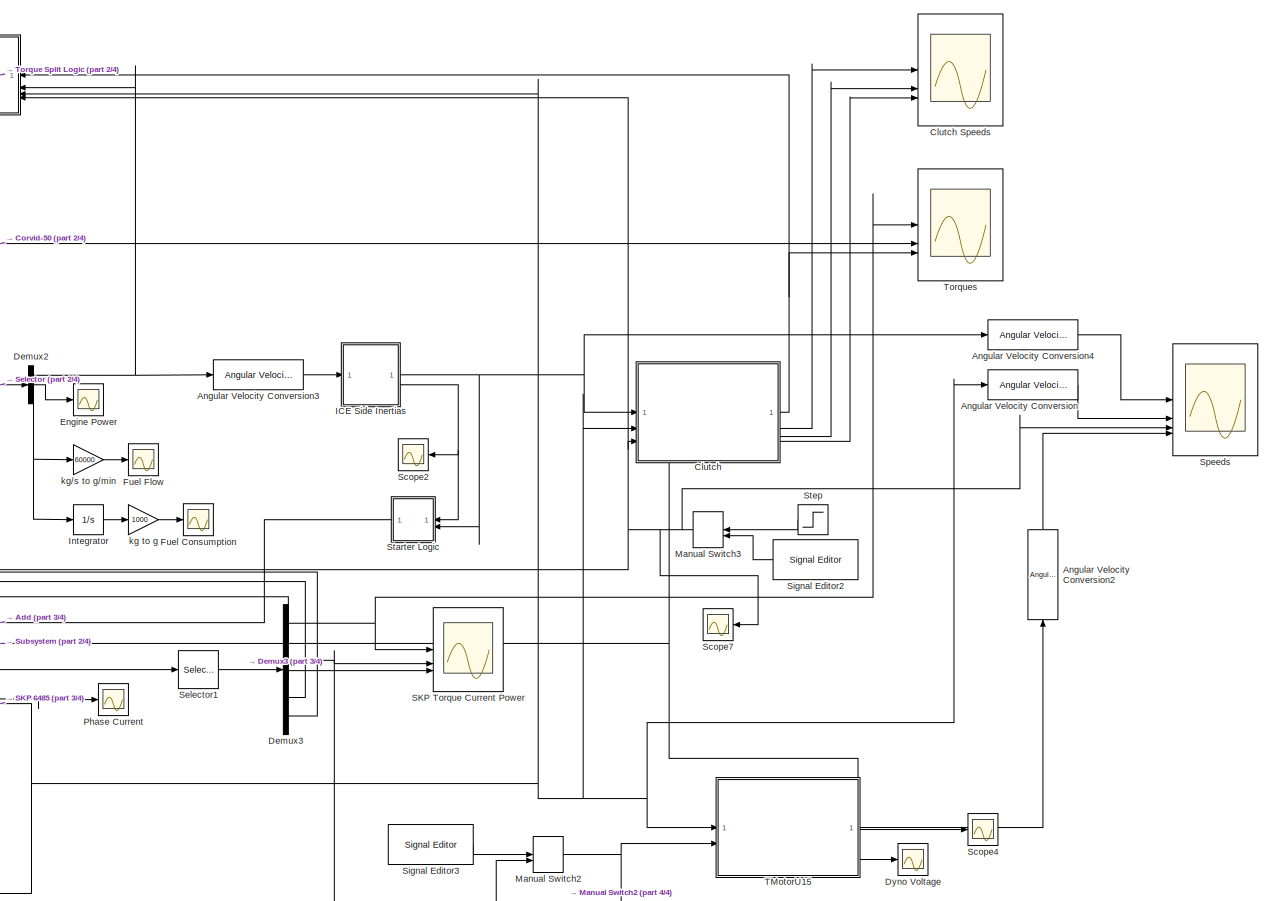
[diagram: root canvas - part 1/4, right side, full height]
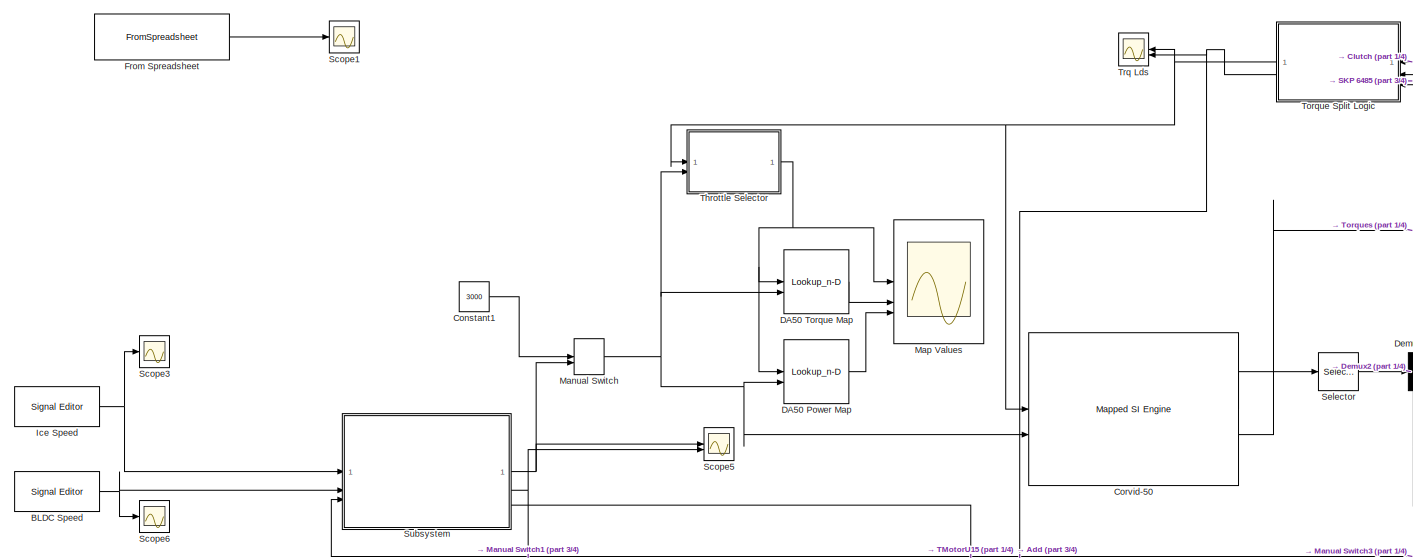
[diagram: root canvas - part 2/4, top left region]
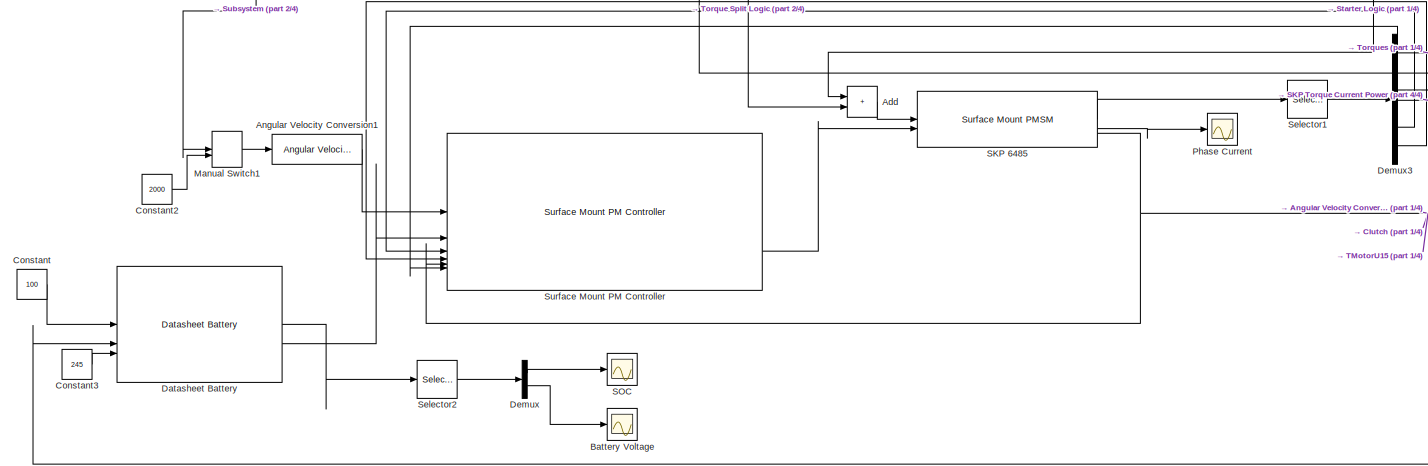
[diagram: root canvas - part 3/4, bottom center region]
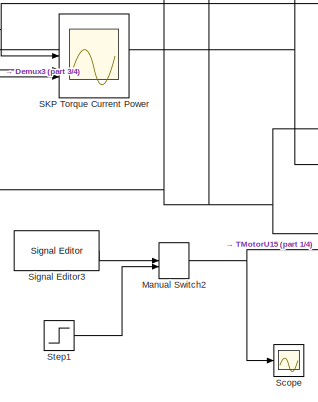
[diagram: root canvas - part 4/4, bottom right region]
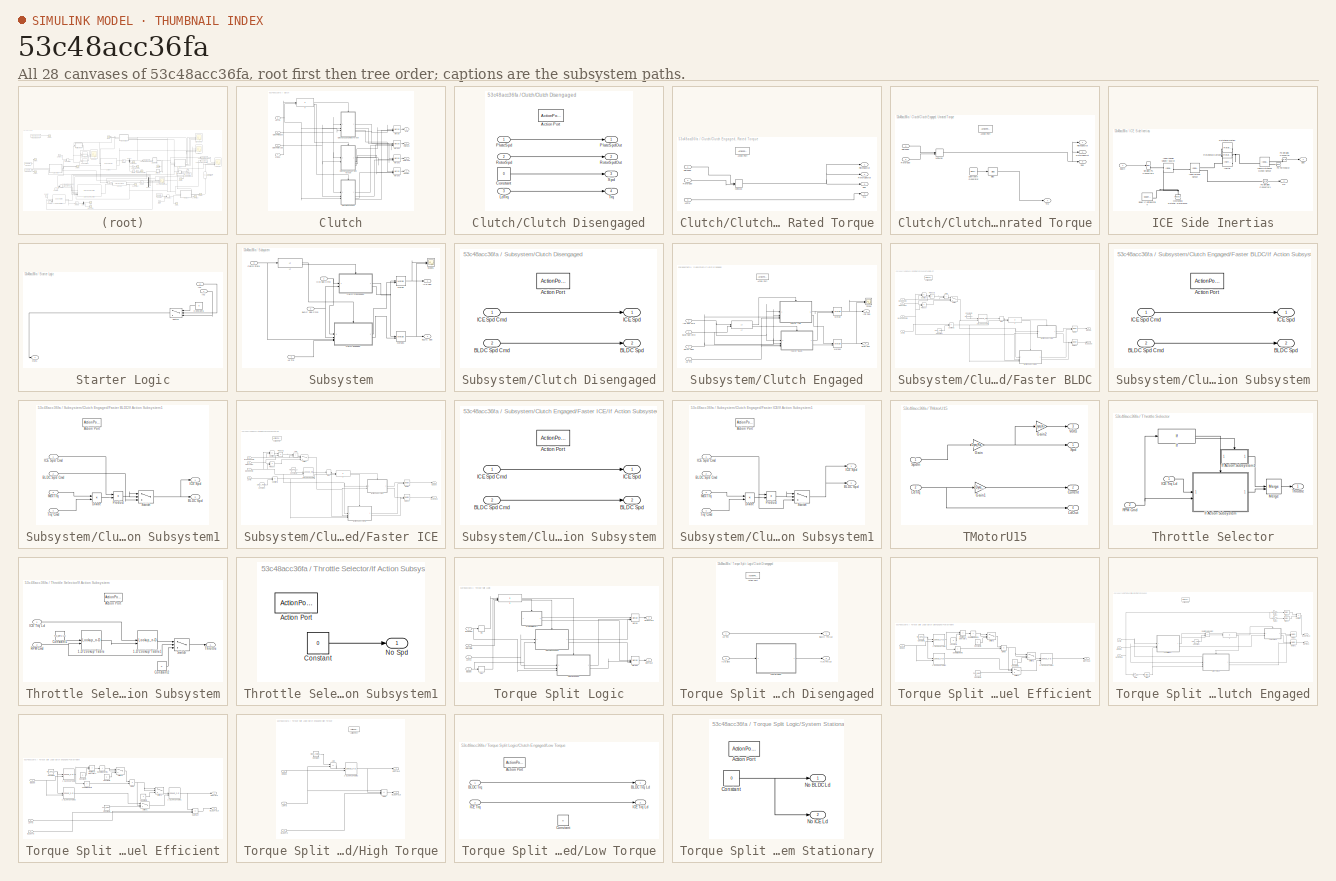
[diagram: thumbnail index - all 28 canvases of the model, root first then tree order]
MODEL slx_53c48acc36fa
KIND model
CONFIG AbsTol = auto
CONFIG EnableMultiTasking = off
CONFIG FixedStep = auto
CONFIG MaxStep = 0.1
CONFIG MinStep = 0.001
CONFIG RelTol = 1e-3
CONFIG SampleTimeConstraint = Unconstrained
CONFIG SolverName = FixedStepAuto
CONFIG StartTime = 0.0
CONFIG StopTime = 100
WORKSPACE source: mxarray member
WORKSPACE Vcc = 12
BLOCK [Sum] Add
  IconShape = rectangular
BLOCK [Reference] Angular Velocity Conversion  REF=aerolibconvert2/Angular Velocity
Conversion
  SourceBlock = aerolibconvert2/Angular Velocity\nConversion
  SourceType = Angular Velocity Conversion
BLOCK [Reference] Angular Velocity Conversion1  REF=aerolibconvert2/Angular Velocity
Conversion
  SourceBlock = aerolibconvert2/Angular Velocity\nConversion
  SourceType = Angular Velocity Conversion
BLOCK [Reference] Angular Velocity Conversion2  REF=aerolibconvert2/Angular Velocity
Conversion
  NameLocation = right
  SourceBlock = aerolibconvert2/Angular Velocity\nConversion
  SourceType = Angular Velocity Conversion
BLOCK [Reference] Angular Velocity Conversion3  REF=aerolibconvert2/Angular Velocity
Conversion
  SourceBlock = aerolibconvert2/Angular Velocity\nConversion
  SourceType = Angular Velocity Conversion
BLOCK [Reference] Angular Velocity Conversion4  REF=aerolibconvert2/Angular Velocity
Conversion
  SourceBlock = aerolibconvert2/Angular Velocity\nConversion
  SourceType = Angular Velocity Conversion
BLOCK [Reference] BLDC Speed  REF=SignalEditorBlockLib/Signal Editor
  LibrarySourceBlock = simulink/Sources/Signal Editor
  SourceBlock = SignalEditorBlockLib/Signal Editor
  SourceType = SignalEditor
  UserDataPersistent = on
BLOCK [Scope] Battery Voltage
  Floating = off
  NumInputPorts = 1
  ScopeSpecificationString = Simulink.scopes.TimeScopeBlockCfg('CurrentConfiguration', extmgr.ConfigurationSet(extmgr.Configuration('Core','General UI',true),extmgr.Configuration('Core','Source UI',true),extmgr.Configuration('Sources','WiredSimulink',true,'DataLoggingVariableName','ScopeData1'),extmgr.Configuration('Visuals','Time Domain',true,'SerializedDisplays',{struct('MinYLimReal','-1.99977','MaxYLimReal','60.2079','YLab...<+1589ch>
BLOCK [SubSystem] Clutch
BLOCK [Scope] Clutch Speeds
  Floating = off
  NumInputPorts = 3
  ScopeSpecificationString = Simulink.scopes.TimeScopeBlockCfg('CurrentConfiguration', extmgr.ConfigurationSet(extmgr.Configuration('Core','General UI',true),extmgr.Configuration('Core','Source UI',true),extmgr.Configuration('Sources','WiredSimulink',true,'DataLoggingVariableName','ScopeData2'),extmgr.Configuration('Visuals','Time Domain',true,'SerializedDisplays',{struct('MinYLimReal','-65.68438','MaxYLimReal','591.15939','Y...<+3418ch>
BLOCK [SubSystem] Clutch/Clutch Disengaged
  TreatAsAtomicUnit = on
BLOCK [ActionPort] Clutch/Clutch Disengaged/Action Port
  ActionPortLabel = else
BLOCK [Constant] Clutch/Clutch Disengaged/Constant
  Value = 0
BLOCK [Inport] Clutch/Clutch Disengaged/LdTrq
  Port = 3
BLOCK [Inport] Clutch/Clutch Disengaged/PlateSpd
BLOCK [Outport] Clutch/Clutch Disengaged/PlateSpdOut
BLOCK [Inport] Clutch/Clutch Disengaged/RotorSpd
  Port = 2
BLOCK [Outport] Clutch/Clutch Disengaged/RotorSpdOut
  Port = 2
BLOCK [Outport] Clutch/Clutch Disengaged/Spd
  Port = 3
BLOCK [Outport] Clutch/Clutch Disengaged/Trq
  Port = 4
BLOCK [SubSystem] Clutch/Clutch Engaged, Rated Torque
  TreatAsAtomicUnit = on
BLOCK [ActionPort] Clutch/Clutch Engaged, Rated Torque/Action Port
  ActionPortLabel = if((u1 == 1) & (u2<KinFricTrq))
BLOCK [Inport] Clutch/Clutch Engaged, Rated Torque/LdTrq
  Port = 3
BLOCK [MinMax] Clutch/Clutch Engaged, Rated Torque/MinMax
  Function = max
  Inputs = 2
BLOCK [Inport] Clutch/Clutch Engaged, Rated Torque/PlateSpd
BLOCK [Outport] Clutch/Clutch Engaged, Rated Torque/PlateSpdOut
BLOCK [Inport] Clutch/Clutch Engaged, Rated Torque/RotorSpd
  Port = 2
BLOCK [Outport] Clutch/Clutch Engaged, Rated Torque/RotorSpdOut
  Port = 2
BLOCK [Outport] Clutch/Clutch Engaged, Rated Torque/Spd
  Port = 3
BLOCK [Outport] Clutch/Clutch Engaged, Rated Torque/Trq
  Port = 4
BLOCK [SubSystem] Clutch/Clutch Engaged, Unrated Torque
  TreatAsAtomicUnit = on
BLOCK [ActionPort] Clutch/Clutch Engaged, Unrated Torque/Action Port
  ActionPortLabel = elseif((u1 == 1) & (u2>KinFricTrq))
BLOCK [Bias] Clutch/Clutch Engaged, Unrated Torque/Bias
  Bias = (F_clamp*R_eff)/2*((mew_s+mew_k))
  SaturateOnIntegerOverflow = off
BLOCK [MinMax] Clutch/Clutch Engaged, Unrated Torque/MinMax
  Function = max
  Inputs = 2
BLOCK [Inport] Clutch/Clutch Engaged, Unrated Torque/PlateSpd
BLOCK [Outport] Clutch/Clutch Engaged, Unrated Torque/PlateSpdOut
BLOCK [Inport] Clutch/Clutch Engaged, Unrated Torque/RotorSpd
  Port = 2
BLOCK [Outport] Clutch/Clutch Engaged, Unrated Torque/RotorSpdOut
  Port = 2
BLOCK [SignalGenerator] Clutch/Clutch Engaged, Unrated Torque/Sawtooth Generator
  Amplitude = ((F_clamp*R_eff)/2)*(mew_k-mew_s)
  Frequency = 200
  Units = rad/sec
  WaveForm = sawtooth
BLOCK [Outport] Clutch/Clutch Engaged, Unrated Torque/Spd
  Port = 3
BLOCK [Outport] Clutch/Clutch Engaged, Unrated Torque/Trq
  Port = 4
BLOCK [Inport] Clutch/ClutchPlateSpd
BLOCK [Inport] Clutch/ClutchRotorSpd
  Port = 2
BLOCK [If] Clutch/If
  ElseIfExpressions = (u1 == 1) & (u2>KinFricTrq)
  IfExpression = (u1 == 1) & (u2<KinFricTrq)
  NumInputs = 2
BLOCK [Inport] Clutch/LdTrq
  Port = 3
BLOCK [Merge] Clutch/Merge
  Inputs = 3
BLOCK [Merge] Clutch/Merge1
  Inputs = 3
BLOCK [Merge] Clutch/Merge2
  Inputs = 3
BLOCK [Merge] Clutch/Merge3
  Inputs = 3
BLOCK [Outport] Clutch/PlateSpd
  Port = 2
BLOCK [Inport] Clutch/Press
  Port = 4
BLOCK [Outport] Clutch/RotorSpd
  Port = 3
BLOCK [Outport] Clutch/SpdOut
  Port = 4
BLOCK [Outport] Clutch/Trq
BLOCK [Constant] Constant
  Value = 100
BLOCK [Constant] Constant1
  Value = 3000
BLOCK [Constant] Constant2
  Value = 2000
BLOCK [Constant] Constant3
  Value = 245
BLOCK [Reference] Corvid-50  REF=autolibsharedmappedengines/Mapped SI Engine
  LibrarySourceBlock = autolibenginesystems/Mapped SI Engine
  SourceBlock = autolibsharedmappedengines/Mapped SI Engine
  SourceType = Mapped SI Engine
BLOCK [Lookup_n-D] DA50 Power Map
  BreakpointsForDimension1 = [10 15 20 25 30 35 40 50 60 80 100]
  BreakpointsForDimension2 = [2000;3000;4000;5000;6000;7500]
  ExtrapMethod = Clip
  InputPortMap = u0,u1
  InternalRulePriority = Speed
  RndMeth = Simplest
  Table = [28 9 0 0 0 0;135 87 91 1 60 100;285 302 180 256 211 144;360 400 311 310 385 497;444 569 580 569 840 1000;478 635 747 791 970 1239;505 697 880 967 1312 1830;534 788 1054 1286 1745 2434;546 823 1158 1496 2005 2768;550 857 1238 1688 2272 3148;544 861 1245 1708 2300 3188]
BLOCK [Lookup_n-D] DA50 Torque Map
  BreakpointsForDimension1 = [10 15 20 25 30 35 40 50 60 80 100]
  BreakpointsForDimension2 = [2000;3000;4000;5000;6000;7500]
  ExtrapMethod = Clip
  InputPortMap = u0,u1
  InternalRulePriority = Speed
  RndMeth = Simplest
  Table = [0.13369 0.028648 0 0 0 0;0.644578 0.27693 0.217246 0.00191 0.095493 0.127324;1.360775 0.961296 0.429718 0.488924 0.335817 0.183346;1.718873 1.27324 0.742458 0.592056 0.612747 0.6328;2.119944 1.811183 1.384648 1.08671 1.336902 1.27324;2.282282 2.021268 1.783331 1.510699 1.543803 1.577544;2.411197 2.21862 2.100845 1.846834 2.088113 2.330028;2.549662 2.508282 2.51624 2.456079 2.777254 3.099065;2.606...<+151ch>
  UseLastTableValue = on
BLOCK [Reference] Datasheet Battery  REF=autolibdatasheetbattery/Datasheet Battery
  SourceBlock = autolibdatasheetbattery/Datasheet Battery
  SourceType = Datasheet Battery
BLOCK [Demux] Demux
  Outputs = 2
BLOCK [Demux] Demux2
  Outputs = 3
BLOCK [Demux] Demux3
  Outputs = 6
BLOCK [Scope] Dyno Voltage
  Floating = off
  NumInputPorts = 1
  ScopeSpecificationString = Simulink.scopes.TimeScopeBlockCfg('CurrentConfiguration', extmgr.ConfigurationSet(extmgr.Configuration('Core','General UI',true),extmgr.Configuration('Core','Source UI',true),extmgr.Configuration('Sources','WiredSimulink',true,'DataLoggingVariableName','ScopeData1'),extmgr.Configuration('Visuals','Time Domain',true,'SerializedDisplays',{struct('MinYLimReal','-877.14916','MaxYLimReal','7473.31056',...<+1532ch>
BLOCK [Scope] Engine Power
  Floating = off
  NumInputPorts = 1
  ScopeSpecificationString = Simulink.scopes.TimeScopeBlockCfg('CurrentConfiguration', extmgr.ConfigurationSet(extmgr.Configuration('Core','General UI',true),extmgr.Configuration('Core','Source UI',true),extmgr.Configuration('Sources','WiredSimulink',true,'DataLoggingVariableName','ScopeData9'),extmgr.Configuration('Visuals','Time Domain',true,'SerializedDisplays',{struct('MinYLimReal','-59.41159','MaxYLimReal','-39.41159','Y...<+1549ch>
BLOCK [FromSpreadsheet] From Spreadsheet
  Commented = on
  FileName = Hybrid Test 15A Load.xlsx
  Range = A1:B527
  SheetName = Sim
  ZeroCross = on
BLOCK [Scope] Fuel Consumption
  Floating = off
  NumInputPorts = 1
  ScopeSpecificationString = Simulink.scopes.TimeScopeBlockCfg('CurrentConfiguration', extmgr.ConfigurationSet(extmgr.Configuration('Core','General UI',true),extmgr.Configuration('Core','Source UI',true),extmgr.Configuration('Sources','WiredSimulink',true,'DataLoggingVariableName','ScopeData2'),extmgr.Configuration('Visuals','Time Domain',true,'SerializedDisplays',{struct('MinYLimReal','-0.5993','MaxYLimReal','5.39367','YLabe...<+1422ch>
BLOCK [Scope] Fuel Flow
  Floating = off
  NumInputPorts = 1
  ScopeSpecificationString = Simulink.scopes.TimeScopeBlockCfg('CurrentConfiguration', extmgr.ConfigurationSet(extmgr.Configuration('Core','General UI',true),extmgr.Configuration('Core','Source UI',true),extmgr.Configuration('Sources','WiredSimulink',true,'DataLoggingVariableName','ScopeData1'),extmgr.Configuration('Visuals','Time Domain',true,'SerializedDisplays',{struct('MinYLimReal','-0.88865','MaxYLimReal','7.99782','YLab...<+1397ch>
BLOCK [SubSystem] ICE Side Inertias
BLOCK [Reference] ICE Side Inertias/Ideal Angular Velocity Source  REF=fl_lib/Mechanical/Mechanical Sources/Ideal Angular
Velocity Source
  SourceBlock = fl_lib/Mechanical/Mechanical Sources/Ideal Angular\nVelocity Source
  SourceType = Ideal Angular\nVelocity Source
BLOCK [Reference] ICE Side Inertias/Ideal Rotational Motion Sensor  REF=fl_lib/Mechanical/Mechanical Sensors/Ideal Rotational
Motion Sensor
  SourceBlock = fl_lib/Mechanical/Mechanical Sensors/Ideal Rotational\nMotion Sensor
  SourceType = Ideal Rotational\nMotion Sensor
BLOCK [Reference] ICE Side Inertias/Ideal Torque Sensor  REF=fl_lib/Mechanical/Mechanical Sensors/Ideal Torque Sensor
  SourceBlock = fl_lib/Mechanical/Mechanical Sensors/Ideal Torque Sensor
  SourceType = Ideal Torque Sensor
BLOCK [Reference] ICE Side Inertias/Inertia  REF=fl_lib/Mechanical/Rotational Elements/Inertia
  NameLocation = top
  SourceBlock = fl_lib/Mechanical/Rotational Elements/Inertia
  SourceType = Inertia
BLOCK [Reference] ICE Side Inertias/Mechanical Rotational Reference  REF=fl_lib/Mechanical/Rotational Elements/Mechanical
Rotational Reference
  NameLocation = right
  SourceBlock = fl_lib/Mechanical/Rotational Elements/Mechanical\nRotational Reference
  SourceType = Mechanical\nRotational Reference
BLOCK [Reference] ICE Side Inertias/PS Terminator  REF=fl_lib/Physical Signals/Sinks/PS Terminator
  SourceBlock = fl_lib/Physical Signals/Sinks/PS Terminator
  SourceType = PS Terminator
BLOCK [Reference] ICE Side Inertias/PS-Simulink Converter  REF=nesl_utility/PS-Simulink
Converter
  SourceBlock = nesl_utility/PS-Simulink\nConverter
  SourceType = PS-Simulink\nConverter
BLOCK [Reference] ICE Side Inertias/PS-Simulink Converter1  REF=nesl_utility/PS-Simulink
Converter
  SourceBlock = nesl_utility/PS-Simulink\nConverter
  SourceType = PS-Simulink\nConverter
BLOCK [Reference] ICE Side Inertias/Rotational Damper  REF=fl_lib/Mechanical/Rotational Elements/Rotational Damper
  SourceBlock = fl_lib/Mechanical/Rotational Elements/Rotational Damper
  SourceType = Rotational Damper
BLOCK [Reference] ICE Side Inertias/Rotational Friction  REF=fl_lib/Mechanical/Rotational Elements/Rotational Friction
  SourceBlock = fl_lib/Mechanical/Rotational Elements/Rotational Friction
  SourceType = Rotational Friction
BLOCK [Reference] ICE Side Inertias/Simulink-PS Converter2  REF=nesl_utility/Simulink-PS
Converter
  SourceBlock = nesl_utility/Simulink-PS\nConverter
  SourceType = Simulink-PS\nConverter
BLOCK [Reference] ICE Side Inertias/Solver Configuration  REF=nesl_utility/Solver
Configuration
  SourceBlock = nesl_utility/Solver\nConfiguration
  SourceType = Solver\nConfiguration
BLOCK [Outport] ICE Side Inertias/Spd
BLOCK [Inport] ICE Side Inertias/SpdIn
BLOCK [Outport] ICE Side Inertias/Trq
  Port = 2
BLOCK [Reference] Ice Speed  REF=SignalEditorBlockLib/Signal Editor
  LibrarySourceBlock = simulink/Sources/Signal Editor
  SourceBlock = SignalEditorBlockLib/Signal Editor
  SourceType = SignalEditor
  UserDataPersistent = on
BLOCK [Integrator] Integrator
BLOCK [ManualSwitch] Manual Switch
  CurrentSetting = 0
BLOCK [ManualSwitch] Manual Switch1
BLOCK [ManualSwitch] Manual Switch2
  CurrentSetting = 0
BLOCK [ManualSwitch] Manual Switch3
  CurrentSetting = 0
BLOCK [Scope] Map Values
  Floating = off
  NumInputPorts = 3
  ScopeSpecificationString = Simulink.scopes.TimeScopeBlockCfg('CurrentConfiguration', extmgr.ConfigurationSet(extmgr.Configuration('Core','General UI',true),extmgr.Configuration('Core','Source UI',true),extmgr.Configuration('Sources','WiredSimulink',true,'DataLoggingVariableName','ScopeData1'),extmgr.Configuration('Visuals','Time Domain',true,'SerializedDisplays',{struct('MinYLimReal','-4.22129','MaxYLimReal','37.99163','YLa...<+2808ch>
BLOCK [Scope] Phase Current
  Floating = off
  NumInputPorts = 1
  ScopeSpecificationString = Simulink.scopes.TimeScopeBlockCfg('CurrentConfiguration', extmgr.ConfigurationSet(extmgr.Configuration('Core','General UI',true),extmgr.Configuration('Core','Source UI',true),extmgr.Configuration('Sources','WiredSimulink',true,'DataLoggingVariableName','ScopeData7'),extmgr.Configuration('Visuals','Time Domain',true,'SerializedDisplays',{struct('MinYLimReal','-192.45441','MaxYLimReal','192.75875','...<+1515ch>
BLOCK [Reference] SKP 6485  REF=autolibpmsmexterior/Surface Mount PMSM
  LibrarySourceBlock = mcblib/Electrical Systems/Motors/Surface Mount PMSM
  SourceBlock = autolibpmsmexterior/Surface Mount PMSM
  SourceType = Surface Mount PMSM
BLOCK [Scope] SKP Torque Current Power
  Floating = off
  NumInputPorts = 3
  ScopeSpecificationString = Simulink.scopes.TimeScopeBlockCfg('CurrentConfiguration', extmgr.ConfigurationSet(extmgr.Configuration('Core','General UI',true),extmgr.Configuration('Core','Source UI',true),extmgr.Configuration('Sources','WiredSimulink',true,'DataLoggingVariableName','ScopeData1'),extmgr.Configuration('Visuals','Time Domain',true,'SerializedDisplays',{struct('MinYLimReal','-1.99697','MaxYLimReal','3.70648','YLab...<+3356ch>
BLOCK [Scope] SOC
  Floating = off
  NumInputPorts = 1
  ScopeSpecificationString = Simulink.scopes.TimeScopeBlockCfg('CurrentConfiguration', extmgr.ConfigurationSet(extmgr.Configuration('Core','General UI',true),extmgr.Configuration('Core','Source UI',true),extmgr.Configuration('Sources','WiredSimulink',true,'DataLoggingVariableName','ScopeData3'),extmgr.Configuration('Visuals','Time Domain',true,'SerializedDisplays',{struct('MinYLimReal','0.9737','MaxYLimReal','1.00292','YLabel...<+1416ch>
BLOCK [Scope] Scope
  Floating = off
  NumInputPorts = 1
  ScopeSpecificationString = Simulink.scopes.TimeScopeBlockCfg('CurrentConfiguration', extmgr.ConfigurationSet(extmgr.Configuration('Core','General UI',true),extmgr.Configuration('Core','Source UI',true),extmgr.Configuration('Sources','WiredSimulink',true,'DataLoggingVariableName','ScopeData2'),extmgr.Configuration('Visuals','Time Domain',true,'SerializedDisplays',{struct('MinYLimReal','-1.25','MaxYLimReal','11.25','YLabelRea...<+1429ch>
BLOCK [Scope] Scope1
  Commented = on
  Floating = off
  NumInputPorts = 1
  ScopeSpecificationString = Simulink.scopes.TimeScopeBlockCfg('CurrentConfiguration', extmgr.ConfigurationSet(extmgr.Configuration('Core','General UI',true),extmgr.Configuration('Core','Source UI',true),extmgr.Configuration('Sources','WiredSimulink',true,'DataLoggingVariableName','ScopeData1'),extmgr.Configuration('Visuals','Time Domain',true,'SerializedDisplays',{struct('MinYLimReal','-1.00000','MaxYLimReal','1.00000','YLab...<+1729ch>
BLOCK [Scope] Scope2
  Floating = off
  NumInputPorts = 1
  ScopeSpecificationString = Simulink.scopes.TimeScopeBlockCfg('CurrentConfiguration', extmgr.ConfigurationSet(extmgr.Configuration('Core','General UI',true),extmgr.Configuration('Core','Source UI',true),extmgr.Configuration('Sources','WiredSimulink',true,'DataLoggingVariableName','ScopeData1'),extmgr.Configuration('Visuals','Time Domain',true,'SerializedDisplays',{struct('MinYLimReal','-1.00000','MaxYLimReal','1.00000','YLab...<+1449ch>
BLOCK [Scope] Scope3
  Floating = off
  NumInputPorts = 1
  ScopeSpecificationString = Simulink.scopes.TimeScopeBlockCfg('CurrentConfiguration', extmgr.ConfigurationSet(extmgr.Configuration('Core','General UI',true),extmgr.Configuration('Core','Source UI',true),extmgr.Configuration('Sources','WiredSimulink',true,'DataLoggingVariableName','ScopeData3'),extmgr.Configuration('Visuals','Time Domain',true,'SerializedDisplays',{struct('MinYLimReal','-375.00000','MaxYLimReal','3375.00000',...<+1457ch>
BLOCK [Scope] Scope4
  Floating = off
  NumInputPorts = 1
  ScopeSpecificationString = Simulink.scopes.TimeScopeBlockCfg('CurrentConfiguration', extmgr.ConfigurationSet(extmgr.Configuration('Core','General UI',true),extmgr.Configuration('Core','Source UI',true),extmgr.Configuration('Sources','WiredSimulink',true,'DataLoggingVariableName','ScopeData3'),extmgr.Configuration('Visuals','Time Domain',true,'SerializedDisplays',{struct('MinYLimReal','-1.00000','MaxYLimReal','1.00000','YLab...<+1730ch>
BLOCK [Scope] Scope5
  Floating = off
  NumInputPorts = 2
  ScopeSpecificationString = Simulink.scopes.TimeScopeBlockCfg('CurrentConfiguration', extmgr.ConfigurationSet(extmgr.Configuration('Core','General UI',true),extmgr.Configuration('Core','Source UI',true),extmgr.Configuration('Sources','WiredSimulink',true,'DataLoggingVariableName','ScopeData4'),extmgr.Configuration('Visuals','Time Domain',true,'SerializedDisplays',{struct('MinYLimReal','-625.00000','MaxYLimReal','5625.00000',...<+1402ch>
BLOCK [Scope] Scope6
  Floating = off
  NumInputPorts = 1
  ScopeSpecificationString = Simulink.scopes.TimeScopeBlockCfg('CurrentConfiguration', extmgr.ConfigurationSet(extmgr.Configuration('Core','General UI',true),extmgr.Configuration('Core','Source UI',true),extmgr.Configuration('Sources','WiredSimulink',true,'DataLoggingVariableName','ScopeData6'),extmgr.Configuration('Visuals','Time Domain',true,'SerializedDisplays',{struct('MinYLimReal','-250.00000','MaxYLimReal','2250.00000',...<+1761ch>
BLOCK [Scope] Scope7
  Floating = off
  NumInputPorts = 1
  ScopeSpecificationString = Simulink.scopes.TimeScopeBlockCfg('CurrentConfiguration', extmgr.ConfigurationSet(extmgr.Configuration('Core','General UI',true),extmgr.Configuration('Core','Source UI',true),extmgr.Configuration('Sources','WiredSimulink',true,'DataLoggingVariableName','ScopeData5'),extmgr.Configuration('Visuals','Time Domain',true,'SerializedDisplays',{struct('MinYLimReal','-0.125','MaxYLimReal','1.125','YLabelRe...<+1716ch>
BLOCK [Selector] Selector
  IndexOptions = Index vector (dialog)
  Indices = [8 16 4]
  InputPortWidth = 19
  OutputSizes = 1
BLOCK [Selector] Selector1
  IndexOptions = Index vector (dialog)
  Indices = [10 9 5 12 1 2]
  InputPortWidth = 15
  OutputSizes = 1
BLOCK [Selector] Selector2
  IndexOptions = Index vector (dialog)
  Indices = [3 4]
  InputPortWidth = 8
  OutputSizes = 1
BLOCK [Reference] Signal Editor2  REF=SignalEditorBlockLib/Signal Editor
  LibrarySourceBlock = simulink/Sources/Signal Editor
  SourceBlock = SignalEditorBlockLib/Signal Editor
  SourceType = SignalEditor
  UserDataPersistent = on
BLOCK [Reference] Signal Editor3  REF=SignalEditorBlockLib/Signal Editor
  LibrarySourceBlock = simulink/Sources/Signal Editor
  SourceBlock = SignalEditorBlockLib/Signal Editor
  SourceType = SignalEditor
  UserDataPersistent = on
BLOCK [Scope] Speeds
  Floating = off
  NumInputPorts = 4
  ScopeSpecificationString = Simulink.scopes.TimeScopeBlockCfg('CurrentConfiguration', extmgr.ConfigurationSet(extmgr.Configuration('Core','General UI',true),extmgr.Configuration('Core','Source UI',true),extmgr.Configuration('Sources','WiredSimulink',true,'DataLoggingVariableName','ScopeData4'),extmgr.Configuration('Visuals','Time Domain',true,'SerializedDisplays',{struct('MinYLimReal','-625.00000','MaxYLimReal','5625.00000',...<+4394ch>
BLOCK [SubSystem] Starter Logic
  ShowPortLabels = none
BLOCK [Constant] Starter Logic/Constant5
  Value = 0
BLOCK [Inport] Starter Logic/In1
  Port = 2
BLOCK [Inport] Starter Logic/In2
BLOCK [Outport] Starter Logic/Out1
BLOCK [Switch] Starter Logic/Switch
  Criteria = u2 > Threshold
  InputSameDT = off
  SaturateOnIntegerOverflow = off
  Threshold = 70
BLOCK [Step] Step
  After = 0
  SampleTime = 0
  Time = 1.5
BLOCK [Step] Step1
  After = 0
  SampleTime = 0
BLOCK [SubSystem] Subsystem
  PortSchema = {"entries":[{"content":{"sides":[{"content":{"connectorIds":["In1","In2","In3"]},"type":"ConnectorPlacement.EquallySpacedRectSide","uuid":"a9fce521-9827-428a-9984-875531d8cd1c"},{"content":{"connectorIds":["Out1","Out2","In4"],"side":"RIGHT"},"type":"ConnectorPlacement.EquallySpacedRectSide","uuid":"2c237cb1-226f-4fe9-abf2-a5b9c72d09e3"},{"content":{"side":"TOP"},"type":"ConnectorPlacement.Equally...<+247ch>
BLOCK [Outport] Subsystem/BLDC Spd
  Port = 2
BLOCK [Inport] Subsystem/BLDC Spd Cmd
  Port = 2
BLOCK [SubSystem] Subsystem/Clutch Disengaged
  TreatAsAtomicUnit = on
BLOCK [ActionPort] Subsystem/Clutch Disengaged/Action Port
  ActionPortLabel = else
BLOCK [Outport] Subsystem/Clutch Disengaged/BLDC Spd
  Port = 2
BLOCK [Inport] Subsystem/Clutch Disengaged/BLDC Spd Cmd
  Port = 2
BLOCK [Outport] Subsystem/Clutch Disengaged/ICE Spd
BLOCK [Inport] Subsystem/Clutch Disengaged/ICE Spd Cmd
BLOCK [SubSystem] Subsystem/Clutch Engaged
  TreatAsAtomicUnit = on
BLOCK [ActionPort] Subsystem/Clutch Engaged/Action Port
  ActionPortLabel = if(u1 >0)
BLOCK [Outport] Subsystem/Clutch Engaged/BLDC Spd
  Port = 2
BLOCK [Inport] Subsystem/Clutch Engaged/BLDC Spd Cmd
  Port = 2
BLOCK [Inport] Subsystem/Clutch Engaged/Clutch Value
  Port = 3
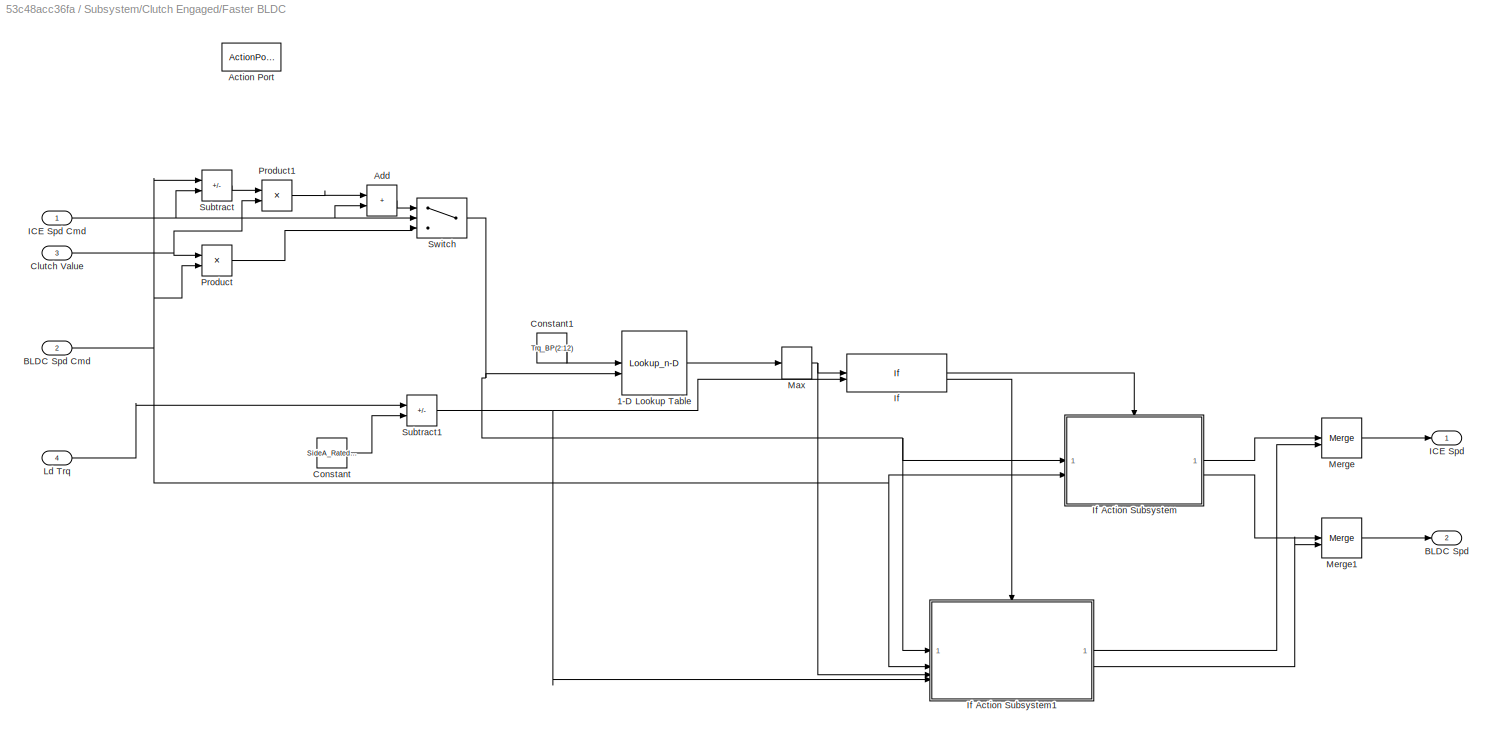
BLOCK [SubSystem] Subsystem/Clutch Engaged/Faster BLDC
  TreatAsAtomicUnit = on
BLOCK [Lookup_n-D] Subsystem/Clutch Engaged/Faster BLDC/1-D Lookup Table
  BreakpointsForDimension1 = Trq_BP(2:12)
  BreakpointsForDimension2 = Spd_BP(2:7)
  ExtrapMethod = Clip
  InputPortMap = u0,u1
  InternalRulePriority = Speed
  RndMeth = Simplest
  Table = Power_Thr_Map
  UseLastTableValue = on
BLOCK [ActionPort] Subsystem/Clutch Engaged/Faster BLDC/Action Port
  ActionPortLabel = else
BLOCK [Sum] Subsystem/Clutch Engaged/Faster BLDC/Add
  IconShape = rectangular
BLOCK [Outport] Subsystem/Clutch Engaged/Faster BLDC/BLDC Spd
  Port = 2
BLOCK [Inport] Subsystem/Clutch Engaged/Faster BLDC/BLDC Spd Cmd
  Port = 2
BLOCK [Inport] Subsystem/Clutch Engaged/Faster BLDC/Clutch Value
  Port = 3
BLOCK [Constant] Subsystem/Clutch Engaged/Faster BLDC/Constant
  Value = SideA_RatedTrq
BLOCK [Constant] Subsystem/Clutch Engaged/Faster BLDC/Constant1
  Value = Trq_BP(2:12)
BLOCK [Outport] Subsystem/Clutch Engaged/Faster BLDC/ICE Spd
BLOCK [Inport] Subsystem/Clutch Engaged/Faster BLDC/ICE Spd Cmd
BLOCK [If] Subsystem/Clutch Engaged/Faster BLDC/If
  IfExpression = u2 < u1
  NumInputs = 2
BLOCK [SubSystem] Subsystem/Clutch Engaged/Faster BLDC/If Action Subsystem
  TreatAsAtomicUnit = on
BLOCK [ActionPort] Subsystem/Clutch Engaged/Faster BLDC/If Action Subsystem/Action Port
  ActionPortLabel = if(u2 < u1)
BLOCK [Outport] Subsystem/Clutch Engaged/Faster BLDC/If Action Subsystem/BLDC Spd
  Port = 2
BLOCK [Inport] Subsystem/Clutch Engaged/Faster BLDC/If Action Subsystem/BLDC Spd Cmd
  Port = 2
BLOCK [Outport] Subsystem/Clutch Engaged/Faster BLDC/If Action Subsystem/ICE Spd
BLOCK [Inport] Subsystem/Clutch Engaged/Faster BLDC/If Action Subsystem/ICE Spd Cmd
BLOCK [SubSystem] Subsystem/Clutch Engaged/Faster BLDC/If Action Subsystem1
  TreatAsAtomicUnit = on
BLOCK [ActionPort] Subsystem/Clutch Engaged/Faster BLDC/If Action Subsystem1/Action Port
  ActionPortLabel = else
BLOCK [Outport] Subsystem/Clutch Engaged/Faster BLDC/If Action Subsystem1/BLDC Spd
  Port = 2
BLOCK [Inport] Subsystem/Clutch Engaged/Faster BLDC/If Action Subsystem1/BLDC Spd Cmd
  Port = 2
BLOCK [Product] Subsystem/Clutch Engaged/Faster BLDC/If Action Subsystem1/Divide
  Inputs = */
BLOCK [Outport] Subsystem/Clutch Engaged/Faster BLDC/If Action Subsystem1/ICE Spd
BLOCK [Inport] Subsystem/Clutch Engaged/Faster BLDC/If Action Subsystem1/ICE Spd Cmd
BLOCK [Inport] Subsystem/Clutch Engaged/Faster BLDC/If Action Subsystem1/Max Trq
  Port = 3
BLOCK [Product] Subsystem/Clutch Engaged/Faster BLDC/If Action Subsystem1/Product
BLOCK [Switch] Subsystem/Clutch Engaged/Faster BLDC/If Action Subsystem1/Switch
  Criteria = u2 > Threshold
  InputSameDT = off
  SaturateOnIntegerOverflow = off
BLOCK [Inport] Subsystem/Clutch Engaged/Faster BLDC/If Action Subsystem1/Trq Cmd
  Port = 4
BLOCK [Inport] Subsystem/Clutch Engaged/Faster BLDC/Ld Trq
  Port = 4
BLOCK [MinMax] Subsystem/Clutch Engaged/Faster BLDC/Max
  Function = max
BLOCK [Merge] Subsystem/Clutch Engaged/Faster BLDC/Merge
BLOCK [Merge] Subsystem/Clutch Engaged/Faster BLDC/Merge1
BLOCK [Product] Subsystem/Clutch Engaged/Faster BLDC/Product
BLOCK [Product] Subsystem/Clutch Engaged/Faster BLDC/Product1
BLOCK [Sum] Subsystem/Clutch Engaged/Faster BLDC/Subtract
  IconShape = rectangular
  Inputs = +-
BLOCK [Sum] Subsystem/Clutch Engaged/Faster BLDC/Subtract1
  IconShape = rectangular
  Inputs = +-
BLOCK [Switch] Subsystem/Clutch Engaged/Faster BLDC/Switch
  Criteria = u2 ~= 0
  InputSameDT = off
  SaturateOnIntegerOverflow = off
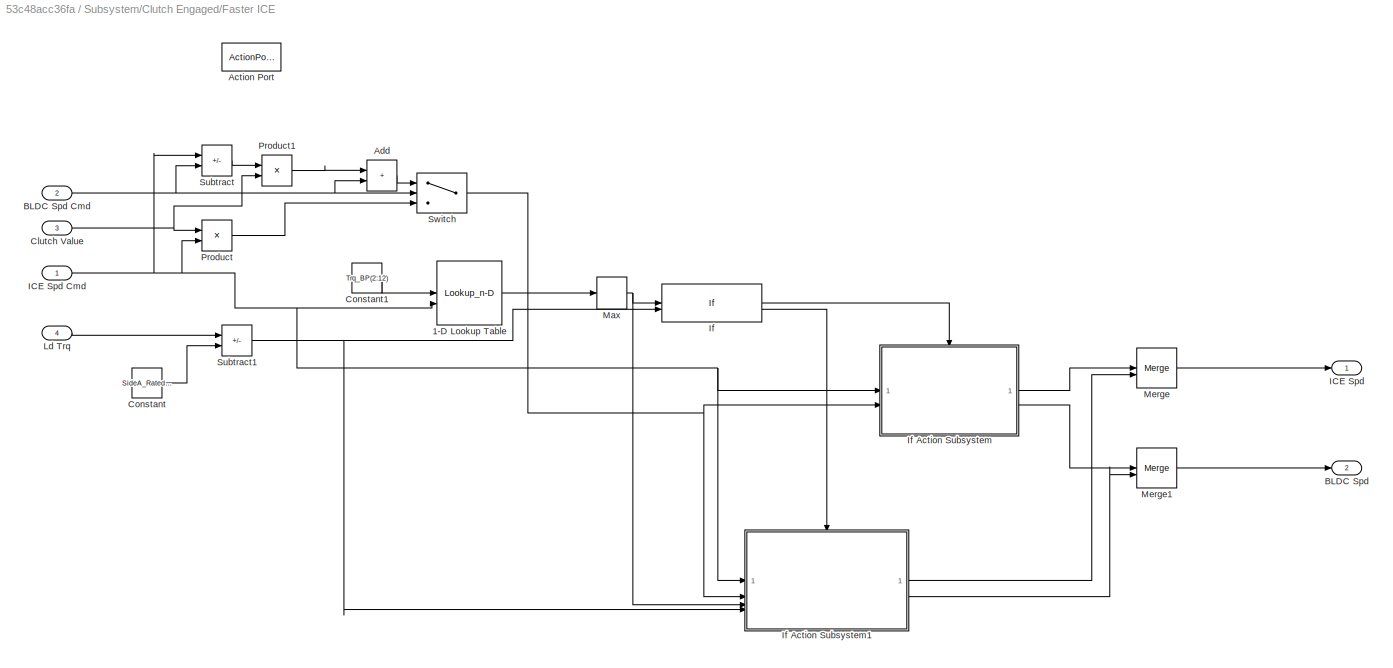
BLOCK [SubSystem] Subsystem/Clutch Engaged/Faster ICE
  TreatAsAtomicUnit = on
BLOCK [Lookup_n-D] Subsystem/Clutch Engaged/Faster ICE/1-D Lookup Table
  BreakpointsForDimension1 = Trq_BP(2:12)
  BreakpointsForDimension2 = Spd_BP(2:7)
  ExtrapMethod = Clip
  InputPortMap = u0,u1
  InternalRulePriority = Speed
  RndMeth = Simplest
  Table = Power_Thr_Map
  UseLastTableValue = on
BLOCK [ActionPort] Subsystem/Clutch Engaged/Faster ICE/Action Port
  ActionPortLabel = if(u1 > u2)
BLOCK [Sum] Subsystem/Clutch Engaged/Faster ICE/Add
  IconShape = rectangular
BLOCK [Outport] Subsystem/Clutch Engaged/Faster ICE/BLDC Spd
  Port = 2
BLOCK [Inport] Subsystem/Clutch Engaged/Faster ICE/BLDC Spd Cmd
  Port = 2
BLOCK [Inport] Subsystem/Clutch Engaged/Faster ICE/Clutch Value
  Port = 3
BLOCK [Constant] Subsystem/Clutch Engaged/Faster ICE/Constant
  Value = SideA_RatedTrq
BLOCK [Constant] Subsystem/Clutch Engaged/Faster ICE/Constant1
  Value = Trq_BP(2:12)
BLOCK [Outport] Subsystem/Clutch Engaged/Faster ICE/ICE Spd
BLOCK [Inport] Subsystem/Clutch Engaged/Faster ICE/ICE Spd Cmd
BLOCK [If] Subsystem/Clutch Engaged/Faster ICE/If
  IfExpression = u2 < u1
  NumInputs = 2
BLOCK [SubSystem] Subsystem/Clutch Engaged/Faster ICE/If Action Subsystem
  TreatAsAtomicUnit = on
BLOCK [ActionPort] Subsystem/Clutch Engaged/Faster ICE/If Action Subsystem/Action Port
  ActionPortLabel = if(u2 < u1)
BLOCK [Outport] Subsystem/Clutch Engaged/Faster ICE/If Action Subsystem/BLDC Spd
  Port = 2
BLOCK [Inport] Subsystem/Clutch Engaged/Faster ICE/If Action Subsystem/BLDC Spd Cmd
  Port = 2
BLOCK [Outport] Subsystem/Clutch Engaged/Faster ICE/If Action Subsystem/ICE Spd
BLOCK [Inport] Subsystem/Clutch Engaged/Faster ICE/If Action Subsystem/ICE Spd Cmd
BLOCK [SubSystem] Subsystem/Clutch Engaged/Faster ICE/If Action Subsystem1
  TreatAsAtomicUnit = on
BLOCK [ActionPort] Subsystem/Clutch Engaged/Faster ICE/If Action Subsystem1/Action Port
  ActionPortLabel = else
BLOCK [Outport] Subsystem/Clutch Engaged/Faster ICE/If Action Subsystem1/BLDC Spd
  Port = 2
BLOCK [Inport] Subsystem/Clutch Engaged/Faster ICE/If Action Subsystem1/BLDC Spd Cmd
  Port = 2
BLOCK [Product] Subsystem/Clutch Engaged/Faster ICE/If Action Subsystem1/Divide
  Inputs = */
BLOCK [Outport] Subsystem/Clutch Engaged/Faster ICE/If Action Subsystem1/ICE Spd
BLOCK [Inport] Subsystem/Clutch Engaged/Faster ICE/If Action Subsystem1/ICE Spd Cmd
BLOCK [Inport] Subsystem/Clutch Engaged/Faster ICE/If Action Subsystem1/Max Trq
  Port = 3
BLOCK [Product] Subsystem/Clutch Engaged/Faster ICE/If Action Subsystem1/Product
BLOCK [Switch] Subsystem/Clutch Engaged/Faster ICE/If Action Subsystem1/Switch
  Criteria = u2 > Threshold
  InputSameDT = off
  SaturateOnIntegerOverflow = off
BLOCK [Inport] Subsystem/Clutch Engaged/Faster ICE/If Action Subsystem1/Trq Cmd
  Port = 4
BLOCK [Inport] Subsystem/Clutch Engaged/Faster ICE/Ld Trq
  Port = 4
BLOCK [MinMax] Subsystem/Clutch Engaged/Faster ICE/Max
  Function = max
BLOCK [Merge] Subsystem/Clutch Engaged/Faster ICE/Merge
BLOCK [Merge] Subsystem/Clutch Engaged/Faster ICE/Merge1
BLOCK [Product] Subsystem/Clutch Engaged/Faster ICE/Product
BLOCK [Product] Subsystem/Clutch Engaged/Faster ICE/Product1
BLOCK [Sum] Subsystem/Clutch Engaged/Faster ICE/Subtract
  IconShape = rectangular
  Inputs = +-
BLOCK [Sum] Subsystem/Clutch Engaged/Faster ICE/Subtract1
  IconShape = rectangular
  Inputs = +-
BLOCK [Switch] Subsystem/Clutch Engaged/Faster ICE/Switch
  Criteria = u2 ~= 0
  InputSameDT = off
  SaturateOnIntegerOverflow = off
BLOCK [Outport] Subsystem/Clutch Engaged/ICE Spd
BLOCK [Inport] Subsystem/Clutch Engaged/ICE Spd Cmd
BLOCK [If] Subsystem/Clutch Engaged/If
  IfExpression = u1 > u2
  NumInputs = 2
BLOCK [Inport] Subsystem/Clutch Engaged/Ld Trq
  Port = 4
BLOCK [Merge] Subsystem/Clutch Engaged/Merge
BLOCK [Merge] Subsystem/Clutch Engaged/Merge1
BLOCK [Scope] Subsystem/Clutch Engaged/Scope
  Floating = off
  NumInputPorts = 2
  ScopeSpecificationString = Simulink.scopes.TimeScopeBlockCfg('CurrentConfiguration', extmgr.ConfigurationSet(extmgr.Configuration('Core','General UI',true),extmgr.Configuration('Core','Source UI',true),extmgr.Configuration('Sources','WiredSimulink',true,'DataLoggingVariableName','ScopeData5'),extmgr.Configuration('Visuals','Time Domain',true,'SerializedDisplays',{struct('MinYLimReal','-625.00000','MaxYLimReal','5625.00000',...<+1459ch>
BLOCK [Inport] Subsystem/Clutch State
  Port = 3
BLOCK [Outport] Subsystem/ICE Spd
BLOCK [Inport] Subsystem/ICE Spd Cmd
BLOCK [If] Subsystem/If
  IfExpression = u1 >0
BLOCK [Inport] Subsystem/Ld Trq
  Port = 4
BLOCK [Merge] Subsystem/Merge
BLOCK [Merge] Subsystem/Merge1
BLOCK [Scope] Subsystem/Scope1
  Floating = off
  NumInputPorts = 2
  ScopeSpecificationString = Simulink.scopes.TimeScopeBlockCfg('CurrentConfiguration', extmgr.ConfigurationSet(extmgr.Configuration('Core','General UI',true),extmgr.Configuration('Core','Source UI',true),extmgr.Configuration('Sources','WiredSimulink',true,'DataLoggingVariableName','ScopeData3'),extmgr.Configuration('Visuals','Time Domain',true,'SerializedDisplays',{struct('MinYLimReal','-1638.33506','MaxYLimReal','2404.25945'...<+1544ch>
BLOCK [Reference] Surface Mount PM Controller  REF=autolibmotorctrlr/Surface Mount PM Controller
  SourceBlock = autolibmotorctrlr/Surface Mount PM Controller
  SourceType = Surface Mount PM Controller
BLOCK [SubSystem] TMotorU15
  PortSchema = {"entries":[{"content":{"sides":[{"content":{"connectorIds":["In1","In2"]},"type":"ConnectorPlacement.EquallySpacedRectSide","uuid":"afb8d32f-37be-4677-8304-2f41df29ec72"},{"content":{"connectorIds":["Out1","Out2","Out3"],"side":"RIGHT"},"type":"ConnectorPlacement.EquallySpacedRectSide","uuid":"9886462b-9ecc-4fc1-9c78-5e14e225fd14"},{"content":{"connectorIds":["Out4"],"side":"TOP"},"type":"Connect...<+266ch>
BLOCK [Outport] TMotorU15/Current
  Port = 2
BLOCK [Gain] TMotorU15/Gain
  Gain = Dyno_Ratio
BLOCK [Gain] TMotorU15/Gain1
  Gain = 1/Dyno_Kt
BLOCK [Gain] TMotorU15/Gain2
  Gain = Dyno_Ke
BLOCK [Outport] TMotorU15/LdOut
  Port = 4
BLOCK [Inport] TMotorU15/LdTrq
  Port = 2
BLOCK [Outport] TMotorU15/Spd
BLOCK [Inport] TMotorU15/SpdIn
BLOCK [Outport] TMotorU15/Volts
  Port = 3
BLOCK [SubSystem] Throttle Selector
BLOCK [Inport] Throttle Selector/ICE Trq Ld
BLOCK [If] Throttle Selector/If
BLOCK [SubSystem] Throttle Selector/If Action Subsystem
  TreatAsAtomicUnit = on
BLOCK [Lookup_n-D] Throttle Selector/If Action Subsystem/1-D Lookup Table
  BreakpointsForDimension1 = Trq_BP(2:12)
  BreakpointsForDimension2 = Spd_BP(2:7)
  ExtrapMethod = Clip
  InputPortMap = u0,u1
  InternalRulePriority = Speed
  RndMeth = Simplest
  Table = Power_Thr_Map
  UseLastTableValue = on
BLOCK [Lookup_n-D] Throttle Selector/If Action Subsystem/1-D Lookup Table1
  BreakpointsForDimension1 = [-5:5]
  BreakpointsForDimension1Source = Input port
  ExtrapMethod = Clip
  InputPortMap = u0,p5
  InternalRulePriority = Speed
  NumberOfTableDimensions = 1
  RndMeth = Simplest
  Table = Throttle_BP(2:12)
  UseLastTableValue = on
BLOCK [ActionPort] Throttle Selector/If Action Subsystem/Action Port
  ActionPortLabel = if(u1 > 0)
  InitializeStates = reset
BLOCK [Constant] Throttle Selector/If Action Subsystem/Constant1
  Value = Trq_BP(2:12)
BLOCK [Constant] Throttle Selector/If Action Subsystem/Constant2
  Value = 0
BLOCK [Inport] Throttle Selector/If Action Subsystem/ICE Trq Ld
BLOCK [Inport] Throttle Selector/If Action Subsystem/RPM Cmd
  Port = 2
BLOCK [Switch] Throttle Selector/If Action Subsystem/Switch
  Criteria = u2 > Threshold
  InputSameDT = off
  SaturateOnIntegerOverflow = off
BLOCK [Outport] Throttle Selector/If Action Subsystem/Throttle
BLOCK [SubSystem] Throttle Selector/If Action Subsystem1
  TreatAsAtomicUnit = on
BLOCK [ActionPort] Throttle Selector/If Action Subsystem1/Action Port
  ActionPortLabel = else
  InitializeStates = reset
BLOCK [Constant] Throttle Selector/If Action Subsystem1/Constant
  Value = 0
BLOCK [Outport] Throttle Selector/If Action Subsystem1/No Spd
BLOCK [Merge] Throttle Selector/Merge
BLOCK [Inport] Throttle Selector/RPM Cmd
  Port = 2
BLOCK [Outport] Throttle Selector/Throttle
BLOCK [SubSystem] Torque Split Logic
BLOCK [Inport] Torque Split Logic/BLDC Spd
  Port = 3
BLOCK [Outport] Torque Split Logic/BLDC Trq Ld
  Port = 2
BLOCK [SubSystem] Torque Split Logic/Clutch Disengaged
  TreatAsAtomicUnit = on
BLOCK [ActionPort] Torque Split Logic/Clutch Disengaged/Action Port
  ActionPortLabel = else
  InitializeStates = reset
BLOCK [Outport] Torque Split Logic/Clutch Disengaged/BLDC Trq Ld
BLOCK [SubSystem] Torque Split Logic/Clutch Disengaged/Fuel Efficient
BLOCK [Lookup_n-D] Torque Split Logic/Clutch Disengaged/Fuel Efficient/1-D Lookup Table
  BreakpointsForDimension1 = Trq_BP
  BreakpointsForDimension2 = Spd_BP
  DiagnosticForOutOfRangeInput = Error
  ExtrapMethod = Clip
  InputPortMap = u0,u1
  InternalRulePriority = Speed
  RndMeth = Simplest
  Table = Fuel_MapE
  UseLastTableValue = on
BLOCK [Lookup_n-D] Torque Split Logic/Clutch Disengaged/Fuel Efficient/1-D Lookup Table1
  BreakpointsForDimension1 = [1:12]
  BreakpointsForDimension1Source = Input port
  DiagnosticForOutOfRangeInput = Error
  ExtrapMethod = Clip
  InputPortMap = u0,p5
  InternalRulePriority = Speed
  NumberOfTableDimensions = 1
  RndMeth = Simplest
  Table = Trq_BP
  UseLastTableValue = on
BLOCK [Lookup_n-D] Torque Split Logic/Clutch Disengaged/Fuel Efficient/1-D Lookup Table2
  BreakpointsForDimension1 = Trq_BP
  BreakpointsForDimension2 = Spd_BP
  DiagnosticForOutOfRangeInput = Error
  ExtrapMethod = Clip
  InputPortMap = u0,u1
  InternalRulePriority = Speed
  RndMeth = Simplest
  Table = Fuel_Map
  UseLastTableValue = on
BLOCK [Constant] Torque Split Logic/Clutch Disengaged/Fuel Efficient/Constant1
  Value = Trq_BP(1:12)
BLOCK [Constant] Torque Split Logic/Clutch Disengaged/Fuel Efficient/Constant2
  Value = 0
BLOCK [Constant] Torque Split Logic/Clutch Disengaged/Fuel Efficient/Constant3
  Value = Fuel_Map(:,2)
BLOCK [Constant] Torque Split Logic/Clutch Disengaged/Fuel Efficient/Constant4
  Value = 0
BLOCK [Constant] Torque Split Logic/Clutch Disengaged/Fuel Efficient/Constant5
BLOCK [Product] Torque Split Logic/Clutch Disengaged/Fuel Efficient/Divide
  Inputs = /*
  OutMin = [0.000001]
BLOCK [Inport] Torque Split Logic/Clutch Disengaged/Fuel Efficient/ICE Spd
BLOCK [Outport] Torque Split Logic/Clutch Disengaged/Fuel Efficient/ICE Trq Ld
BLOCK [RelationalOperator] Torque Split Logic/Clutch Disengaged/Fuel Efficient/Relational Operator1
  InputSameDT = off
  Operator = >
  OutDataTypeStr = boolean
  RndMeth = Simplest
BLOCK [Sum] Torque Split Logic/Clutch Disengaged/Fuel Efficient/Sum of Elements
  IconShape = rectangular
  Inputs = +
BLOCK [Sum] Torque Split Logic/Clutch Disengaged/Fuel Efficient/Sum of Elements1
  IconShape = rectangular
  Inputs = +
BLOCK [Switch] Torque Split Logic/Clutch Disengaged/Fuel Efficient/Switch1
  Criteria = u2 > Threshold
  InputSameDT = off
  SaturateOnIntegerOverflow = off
  Threshold = min(Fuel_Map(2:end,2:end),[],"all")
BLOCK [Switch] Torque Split Logic/Clutch Disengaged/Fuel Efficient/Switch2
  Criteria = u2 > Threshold
  InputSameDT = off
  SaturateOnIntegerOverflow = off
  Threshold = min(Fuel_Map(2:end,2:end),[],"all")
BLOCK [Switch] Torque Split Logic/Clutch Disengaged/Fuel Efficient/Switch3
  Criteria = u2 > Threshold
  InputSameDT = off
  SaturateOnIntegerOverflow = off
BLOCK [Inport] Torque Split Logic/Clutch Disengaged/ICE Spd
  Port = 2
BLOCK [Outport] Torque Split Logic/Clutch Disengaged/ICE Trq Ld
  Port = 2
BLOCK [Inport] Torque Split Logic/Clutch Disengaged/Ld Trq
BLOCK [SubSystem] Torque Split Logic/Clutch Engaged
  TreatAsAtomicUnit = on
BLOCK [ActionPort] Torque Split Logic/Clutch Engaged/Action Port
  ActionPortLabel = if(u3 == 1 & u2>70)
  InitializeStates = reset
BLOCK [Inport] Torque Split Logic/Clutch Engaged/BLDC Spd
  Port = 3
BLOCK [Outport] Torque Split Logic/Clutch Engaged/BLDC Trq Ld
BLOCK [Bias] Torque Split Logic/Clutch Engaged/Bias
  Bias = SideA_Physical_Param(3)
  SaturateOnIntegerOverflow = off
BLOCK [Bias] Torque Split Logic/Clutch Engaged/Bias1
  Bias = BLDCICE_Driveline_Param(3)
  SaturateOnIntegerOverflow = off
BLOCK [Bias] Torque Split Logic/Clutch Engaged/Bias2
  Bias = BLDC_Driveline_Param(3)
  SaturateOnIntegerOverflow = off
BLOCK [Constant] Torque Split Logic/Clutch Engaged/Constant
  Value = SideA_RatedTrq
BLOCK [SubSystem] Torque Split Logic/Clutch Engaged/Fuel Efficient
BLOCK [Lookup_n-D] Torque Split Logic/Clutch Engaged/Fuel Efficient/1-D Lookup Table
  BreakpointsForDimension1 = Trq_BP
  BreakpointsForDimension2 = Spd_BP
  DiagnosticForOutOfRangeInput = Error
  ExtrapMethod = Clip
  InputPortMap = u0,u1
  InternalRulePriority = Speed
  RndMeth = Simplest
  Table = Fuel_MapE
  UseLastTableValue = on
BLOCK [Lookup_n-D] Torque Split Logic/Clutch Engaged/Fuel Efficient/1-D Lookup Table1
  BreakpointsForDimension1 = [1:12]
  BreakpointsForDimension1Source = Input port
  DiagnosticForOutOfRangeInput = Error
  ExtrapMethod = Clip
  InputPortMap = u0,p5
  InternalRulePriority = Speed
  NumberOfTableDimensions = 1
  RndMeth = Simplest
  Table = Trq_BP
  UseLastTableValue = on
BLOCK [Lookup_n-D] Torque Split Logic/Clutch Engaged/Fuel Efficient/1-D Lookup Table2
  BreakpointsForDimension1 = Trq_BP
  BreakpointsForDimension2 = Spd_BP
  DiagnosticForOutOfRangeInput = Error
  ExtrapMethod = Clip
  InputPortMap = u0,u1
  InternalRulePriority = Speed
  RndMeth = Simplest
  Table = Fuel_Map
  UseLastTableValue = on
BLOCK [Inport] Torque Split Logic/Clutch Engaged/Fuel Efficient/BLDC Trq
  Port = 3
BLOCK [Outport] Torque Split Logic/Clutch Engaged/Fuel Efficient/BLDC Trq Ld
BLOCK [Constant] Torque Split Logic/Clutch Engaged/Fuel Efficient/Constant1
  Value = Trq_BP(1:12)
BLOCK [Constant] Torque Split Logic/Clutch Engaged/Fuel Efficient/Constant2
  Value = 0
BLOCK [Constant] Torque Split Logic/Clutch Engaged/Fuel Efficient/Constant3
  Value = Fuel_Map(:,2)
BLOCK [Constant] Torque Split Logic/Clutch Engaged/Fuel Efficient/Constant4
  Value = 0
BLOCK [Constant] Torque Split Logic/Clutch Engaged/Fuel Efficient/Constant5
BLOCK [Product] Torque Split Logic/Clutch Engaged/Fuel Efficient/Divide
  Inputs = /*
  OutMin = [0.000001]
BLOCK [Inport] Torque Split Logic/Clutch Engaged/Fuel Efficient/ICE Spd
  Port = 2
BLOCK [Outport] Torque Split Logic/Clutch Engaged/Fuel Efficient/ICE Trq Ld
  Port = 2
BLOCK [Inport] Torque Split Logic/Clutch Engaged/Fuel Efficient/Ld Trq
BLOCK [RelationalOperator] Torque Split Logic/Clutch Engaged/Fuel Efficient/Relational Operator1
  InputSameDT = off
  Operator = >
  OutDataTypeStr = boolean
  RndMeth = Simplest
BLOCK [Sum] Torque Split Logic/Clutch Engaged/Fuel Efficient/Subtract
  IconShape = rectangular
  Inputs = -++
BLOCK [Sum] Torque Split Logic/Clutch Engaged/Fuel Efficient/Sum of Elements
  IconShape = rectangular
  Inputs = +
BLOCK [Sum] Torque Split Logic/Clutch Engaged/Fuel Efficient/Sum of Elements1
  IconShape = rectangular
  Inputs = +
BLOCK [Switch] Torque Split Logic/Clutch Engaged/Fuel Efficient/Switch1
  Criteria = u2 > Threshold
  InputSameDT = off
  SaturateOnIntegerOverflow = off
  Threshold = min(Fuel_Map(2:end,2:end),[],"all")
BLOCK [Switch] Torque Split Logic/Clutch Engaged/Fuel Efficient/Switch2
  Criteria = u2 > Threshold
  InputSameDT = off
  SaturateOnIntegerOverflow = off
  Threshold = min(Fuel_Map(2:end,2:end),[],"all")
BLOCK [Switch] Torque Split Logic/Clutch Engaged/Fuel Efficient/Switch3
  Criteria = u2 > Threshold
  InputSameDT = off
  SaturateOnIntegerOverflow = off
BLOCK [Gain] Torque Split Logic/Clutch Engaged/Gain
  Gain = SideA_Physical_Param(2)
BLOCK [Gain] Torque Split Logic/Clutch Engaged/Gain1
  Gain = BLDCICE_Driveline_Param(2)
BLOCK [Gain] Torque Split Logic/Clutch Engaged/Gain2
  Gain = BLDC_Driveline_Param(2)
BLOCK [SubSystem] Torque Split Logic/Clutch Engaged/High Torque
  TreatAsAtomicUnit = on
BLOCK [Lookup_n-D] Torque Split Logic/Clutch Engaged/High Torque/1-D Lookup Table2
  BreakpointsForDimension1 = Trq_BP
  BreakpointsForDimension2 = Spd_BP
  ExtrapMethod = Clip
  InputPortMap = u0,u1
  InternalRulePriority = Speed
  RndMeth = Simplest
  Table = Power_Map
  UseLastTableValue = on
BLOCK [ActionPort] Torque Split Logic/Clutch Engaged/High Torque/Action Port
  ActionPortLabel = else
BLOCK [Sum] Torque Split Logic/Clutch Engaged/High Torque/Add
  IconShape = rectangular
  Inputs = -+
BLOCK [Sum] Torque Split Logic/Clutch Engaged/High Torque/Add2
  IconShape = rectangular
  Inputs = +-+
BLOCK [Inport] Torque Split Logic/Clutch Engaged/High Torque/BLDC Trq
  Port = 3
BLOCK [Outport] Torque Split Logic/Clutch Engaged/High Torque/BLDC Trq Ld
BLOCK [Constant] Torque Split Logic/Clutch Engaged/High Torque/Constant
  Value = SideA_RatedTrq
BLOCK [Inport] Torque Split Logic/Clutch Engaged/High Torque/ICE Spd
  Port = 2
BLOCK [Outport] Torque Split Logic/Clutch Engaged/High Torque/ICE Trq Ld
  Port = 2
BLOCK [Inport] Torque Split Logic/Clutch Engaged/High Torque/Ld Trq
BLOCK [Inport] Torque Split Logic/Clutch Engaged/ICE Spd
  Port = 2
BLOCK [Outport] Torque Split Logic/Clutch Engaged/ICE Trq Ld
  Port = 2
BLOCK [If] Torque Split Logic/Clutch Engaged/If
  IfExpression = u1 == 1
BLOCK [Inport] Torque Split Logic/Clutch Engaged/Ld Trq
BLOCK [SubSystem] Torque Split Logic/Clutch Engaged/Low Torque
  TreatAsAtomicUnit = on
BLOCK [ActionPort] Torque Split Logic/Clutch Engaged/Low Torque/Action Port
  ActionPortLabel = if(u1 == 1)
BLOCK [Inport] Torque Split Logic/Clutch Engaged/Low Torque/BLDC Trq
BLOCK [Outport] Torque Split Logic/Clutch Engaged/Low Torque/BLDC Trq Ld
BLOCK [Constant] Torque Split Logic/Clutch Engaged/Low Torque/Constant
  Value = 0
BLOCK [Inport] Torque Split Logic/Clutch Engaged/Low Torque/ICE Trq
  Port = 2
BLOCK [Outport] Torque Split Logic/Clutch Engaged/Low Torque/ICE Trq Ld
  Port = 2
BLOCK [Merge] Torque Split Logic/Clutch Engaged/Merge
BLOCK [Merge] Torque Split Logic/Clutch Engaged/Merge1
BLOCK [RelationalOperator] Torque Split Logic/Clutch Engaged/Relational Operator
  InputSameDT = off
  Operator = <=
  OutDataTypeStr = fixdt(1,16)
  RndMeth = Simplest
BLOCK [Sum] Torque Split Logic/Clutch Engaged/Subtract
  IconShape = rectangular
  Inputs = +-
BLOCK [Inport] Torque Split Logic/Clutch State
  Port = 4
BLOCK [Rounding] Torque Split Logic/Fix
  Operator = fix
BLOCK [Rounding] Torque Split Logic/Fix1
  Operator = fix
BLOCK [Inport] Torque Split Logic/ICE Spd
  Port = 2
BLOCK [Outport] Torque Split Logic/ICE Trq Ld
BLOCK [If] Torque Split Logic/If
  ElseIfExpressions = u1 == 0 & u2 == 0
  IfExpression = u3 == 1 & u2>70
  NumInputs = 3
BLOCK [Inport] Torque Split Logic/Ld Trq
BLOCK [Merge] Torque Split Logic/Merge
  Inputs = 3
BLOCK [Merge] Torque Split Logic/Merge1
  Inputs = 3
BLOCK [SubSystem] Torque Split Logic/System Stationary
  TreatAsAtomicUnit = on
BLOCK [ActionPort] Torque Split Logic/System Stationary/Action Port
  ActionPortLabel = elseif(u1 == 0 & u2 == 0)
  InitializeStates = reset
BLOCK [Constant] Torque Split Logic/System Stationary/Constant
  Value = 0
BLOCK [Outport] Torque Split Logic/System Stationary/No BLDC Ld
BLOCK [Outport] Torque Split Logic/System Stationary/No ICE Ld
  Port = 2
BLOCK [Scope] Torques
  Floating = off
  NumInputPorts = 3
  ScopeSpecificationString = Simulink.scopes.TimeScopeBlockCfg('CurrentConfiguration', extmgr.ConfigurationSet(extmgr.Configuration('Core','General UI',true),extmgr.Configuration('Core','Source UI',true),extmgr.Configuration('Sources','WiredSimulink',true,'DataLoggingVariableName','ScopeData1'),extmgr.Configuration('Visuals','Time Domain',true,'SerializedDisplays',{struct('MinYLimReal','-1.98441','MaxYLimReal','3.59336','YLab...<+3550ch>
BLOCK [Scope] Trq Lds
  Floating = off
  NumInputPorts = 2
  ScopeSpecificationString = Simulink.scopes.TimeScopeBlockCfg('CurrentConfiguration', extmgr.ConfigurationSet(extmgr.Configuration('Core','General UI',true),extmgr.Configuration('Core','Source UI',true),extmgr.Configuration('Sources','WiredSimulink',true,'DataLoggingVariableName','ScopeData1'),extmgr.Configuration('Visuals','Time Domain',true,'SerializedDisplays',{struct('MinYLimReal','-1.02935','MaxYLimReal','1.67707','YLab...<+2103ch>
BLOCK [Gain] kg to g
  Gain = 1000
BLOCK [Gain] kg//s to g//min
  Gain = 60000
LINE Add:1 -> SKP 6485:1
LINE Angular Velocity Conversion1:1 -> Surface Mount PM Controller:1
LINE Angular Velocity Conversion2:1 -> Speeds:4
LINE Angular Velocity Conversion3:1 -> ICE Side Inertias:1
LINE Angular Velocity Conversion4:1 -> Speeds:1
LINE Angular Velocity Conversion:1 -> Speeds:2
NET BLDC Speed:1 -> Scope6:1, Subsystem:2
LINE Clutch/Clutch Disengaged/Constant:1 -> Clutch/Clutch Disengaged/Spd:1
LINE Clutch/Clutch Disengaged/LdTrq:1 -> Clutch/Clutch Disengaged/Trq:1
LINE Clutch/Clutch Disengaged/PlateSpd:1 -> Clutch/Clutch Disengaged/PlateSpdOut:1
LINE Clutch/Clutch Disengaged/RotorSpd:1 -> Clutch/Clutch Disengaged/RotorSpdOut:1
LINE Clutch/Clutch Disengaged:1 -> Clutch/Merge1:3
LINE Clutch/Clutch Disengaged:2 -> Clutch/Merge2:3
LINE Clutch/Clutch Disengaged:3 -> Clutch/Merge3:3
LINE Clutch/Clutch Disengaged:4 -> Clutch/Merge:3
LINE Clutch/Clutch Engaged, Rated Torque/LdTrq:1 -> Clutch/Clutch Engaged, Rated Torque/Trq:1
NET Clutch/Clutch Engaged, Rated Torque/MinMax:1 -> Clutch/Clutch Engaged, Rated Torque/PlateSpdOut:1, Clutch/Clutch Engaged, Rated Torque/RotorSpdOut:1, Clutch/Clutch Engaged, Rated Torque/Spd:1
LINE Clutch/Clutch Engaged, Rated Torque/PlateSpd:1 -> Clutch/Clutch Engaged, Rated Torque/MinMax:1
LINE Clutch/Clutch Engaged, Rated Torque/RotorSpd:1 -> Clutch/Clutch Engaged, Rated Torque/MinMax:2
LINE Clutch/Clutch Engaged, Rated Torque:1 -> Clutch/Merge1:1
LINE Clutch/Clutch Engaged, Rated Torque:2 -> Clutch/Merge2:1
LINE Clutch/Clutch Engaged, Rated Torque:3 -> Clutch/Merge3:1
LINE Clutch/Clutch Engaged, Rated Torque:4 -> Clutch/Merge:1
LINE Clutch/Clutch Engaged, Unrated Torque/Bias:1 -> Clutch/Clutch Engaged, Unrated Torque/Trq:1
NET Clutch/Clutch Engaged, Unrated Torque/MinMax:1 -> Clutch/Clutch Engaged, Unrated Torque/PlateSpdOut:1, Clutch/Clutch Engaged, Unrated Torque/RotorSpdOut:1, Clutch/Clutch Engaged, Unrated Torque/Spd:1
LINE Clutch/Clutch Engaged, Unrated Torque/PlateSpd:1 -> Clutch/Clutch Engaged, Unrated Torque/MinMax:1
LINE Clutch/Clutch Engaged, Unrated Torque/RotorSpd:1 -> Clutch/Clutch Engaged, Unrated Torque/MinMax:2
LINE Clutch/Clutch Engaged, Unrated Torque/Sawtooth Generator:1 -> Clutch/Clutch Engaged, Unrated Torque/Bias:1
LINE Clutch/Clutch Engaged, Unrated Torque:1 -> Clutch/Merge1:2
LINE Clutch/Clutch Engaged, Unrated Torque:2 -> Clutch/Merge2:2
LINE Clutch/Clutch Engaged, Unrated Torque:3 -> Clutch/Merge3:2
LINE Clutch/Clutch Engaged, Unrated Torque:4 -> Clutch/Merge:2
NET Clutch/ClutchPlateSpd:1 -> Clutch/Clutch Disengaged:1, Clutch/Clutch Engaged, Rated Torque:1, Clutch/Clutch Engaged, Unrated Torque:1
NET Clutch/ClutchRotorSpd:1 -> Clutch/Clutch Disengaged:2, Clutch/Clutch Engaged, Rated Torque:2, Clutch/Clutch Engaged, Unrated Torque:2
LINE Clutch/If:1 -> Clutch/Clutch Engaged, Rated Torque:ifaction
LINE Clutch/If:2 -> Clutch/Clutch Engaged, Unrated Torque:ifaction
LINE Clutch/If:3 -> Clutch/Clutch Disengaged:ifaction
NET Clutch/LdTrq:1 -> Clutch/Clutch Disengaged:3, Clutch/Clutch Engaged, Rated Torque:3, Clutch/If:2
LINE Clutch/Merge1:1 -> Clutch/PlateSpd:1
LINE Clutch/Merge2:1 -> Clutch/RotorSpd:1
LINE Clutch/Merge3:1 -> Clutch/SpdOut:1
LINE Clutch/Merge:1 -> Clutch/Trq:1
LINE Clutch/Press:1 -> Clutch/If:1
NET Clutch:1 -> Torque Split Logic:1, Torques:3
LINE Clutch:2 -> Clutch Speeds:1
LINE Clutch:3 -> Clutch Speeds:2
LINE Clutch:4 -> Clutch Speeds:3
LINE Constant1:1 -> Manual Switch:1
LINE Constant2:1 -> Manual Switch1:2
LINE Constant3:1 -> Datasheet Battery:3
LINE Constant:1 -> Datasheet Battery:1
LINE Corvid-50:1 -> Selector:1
LINE Corvid-50:2 -> Torques:2
LINE DA50 Power Map:1 -> Map Values:3
LINE DA50 Torque Map:1 -> Map Values:2
LINE Datasheet Battery:1 -> Selector2:1
LINE Datasheet Battery:2 -> Surface Mount PM Controller:2
NET Demux2:1 -> Angular Velocity Conversion3:1, Torque Split Logic:2
LINE Demux2:2 -> Engine Power:1
NET Demux2:3 -> Integrator:1, kg//s to g//min:1
NET Demux3:1 -> SKP Torque Current Power:1, Torques:1
LINE Demux3:2 -> Surface Mount PM Controller:6
NET Demux3:3 -> Datasheet Battery:2, SKP Torque Current Power:2
LINE Demux3:4 -> SKP Torque Current Power:3
LINE Demux3:5 -> Surface Mount PM Controller:3
LINE Demux3:6 -> Surface Mount PM Controller:4
LINE Demux:1 -> SOC:1
LINE Demux:2 -> Battery Voltage:1
LINE From Spreadsheet:1 -> Scope1:1
LINE ICE Side Inertias/PS-Simulink Converter1:1 -> ICE Side Inertias/Trq:1
LINE ICE Side Inertias/PS-Simulink Converter:1 -> ICE Side Inertias/Spd:1
LINE ICE Side Inertias/SpdIn:1 -> ICE Side Inertias/Simulink-PS Converter2:1
NET ICE Side Inertias:1 -> Angular Velocity Conversion4:1, Clutch:1, Starter Logic:2
NET ICE Side Inertias:2 -> Scope2:1, Starter Logic:1
NET Ice Speed:1 -> Scope3:1, Subsystem:1
LINE Integrator:1 -> kg to g:1
LINE Manual Switch1:1 -> Angular Velocity Conversion1:1
NET Manual Switch2:1 -> Scope:1, TMotorU15:2
NET Manual Switch3:1 -> Clutch:4, Scope7:1, Speeds:3, Subsystem:3, Torque Split Logic:4
NET Manual Switch:1 -> Corvid-50:2, DA50 Power Map:2, DA50 Torque Map:2, Throttle Selector:2
LINE SKP 6485:1 -> Selector1:1
LINE SKP 6485:2 -> Phase Current:1
NET SKP 6485:3 -> Angular Velocity Conversion:1, Clutch:2, Surface Mount PM Controller:5, TMotorU15:1, Torque Split Logic:3
LINE Selector1:1 -> Demux3:1
LINE Selector2:1 -> Demux:1
LINE Selector:1 -> Demux2:1
LINE Signal Editor2:1 -> Manual Switch3:2
LINE Signal Editor3:1 -> Manual Switch2:1
LINE Starter Logic/Constant5:1 -> Starter Logic/Switch:1
LINE Starter Logic/In1:1 -> Starter Logic/Switch:2
LINE Starter Logic/In2:1 -> Starter Logic/Switch:3
LINE Starter Logic/Switch:1 -> Starter Logic/Out1:1
LINE Starter Logic:1 -> Add:1
LINE Step1:1 -> Manual Switch2:2
LINE Step:1 -> Manual Switch3:1
NET Subsystem/BLDC Spd Cmd:1 -> Subsystem/Clutch Disengaged:2, Subsystem/Clutch Engaged:2
LINE Subsystem/Clutch Disengaged/BLDC Spd Cmd:1 -> Subsystem/Clutch Disengaged/BLDC Spd:1
LINE Subsystem/Clutch Disengaged/ICE Spd Cmd:1 -> Subsystem/Clutch Disengaged/ICE Spd:1
LINE Subsystem/Clutch Disengaged:1 -> Subsystem/Merge:1
LINE Subsystem/Clutch Disengaged:2 -> Subsystem/Merge1:1
NET Subsystem/Clutch Engaged/BLDC Spd Cmd:1 -> Subsystem/Clutch Engaged/Faster BLDC:2, Subsystem/Clutch Engaged/Faster ICE:2, Subsystem/Clutch Engaged/If:2
NET Subsystem/Clutch Engaged/Clutch Value:1 -> Subsystem/Clutch Engaged/Faster BLDC:3, Subsystem/Clutch Engaged/Faster ICE:3
LINE Subsystem/Clutch Engaged/Faster BLDC/1-D Lookup Table:1 -> Subsystem/Clutch Engaged/Faster BLDC/Max:1
LINE Subsystem/Clutch Engaged/Faster BLDC/Add:1 -> Subsystem/Clutch Engaged/Faster BLDC/Switch:1
NET Subsystem/Clutch Engaged/Faster BLDC/BLDC Spd Cmd:1 -> Subsystem/Clutch Engaged/Faster BLDC/If Action Subsystem1:2, Subsystem/Clutch Engaged/Faster BLDC/If Action Subsystem:2, Subsystem/Clutch Engaged/Faster BLDC/Product:2, Subsystem/Clutch Engaged/Faster BLDC/Subtract:1
NET Subsystem/Clutch Engaged/Faster BLDC/Clutch Value:1 -> Subsystem/Clutch Engaged/Faster BLDC/Product1:2, Subsystem/Clutch Engaged/Faster BLDC/Product:1
LINE Subsystem/Clutch Engaged/Faster BLDC/Constant1:1 -> Subsystem/Clutch Engaged/Faster BLDC/1-D Lookup Table:1
LINE Subsystem/Clutch Engaged/Faster BLDC/Constant:1 -> Subsystem/Clutch Engaged/Faster BLDC/Subtract1:2
NET Subsystem/Clutch Engaged/Faster BLDC/ICE Spd Cmd:1 -> Subsystem/Clutch Engaged/Faster BLDC/Add:2, Subsystem/Clutch Engaged/Faster BLDC/Subtract:2, Subsystem/Clutch Engaged/Faster BLDC/Switch:2
LINE Subsystem/Clutch Engaged/Faster BLDC/If Action Subsystem/BLDC Spd Cmd:1 -> Subsystem/Clutch Engaged/Faster BLDC/If Action Subsystem/BLDC Spd:1
LINE Subsystem/Clutch Engaged/Faster BLDC/If Action Subsystem/ICE Spd Cmd:1 -> Subsystem/Clutch Engaged/Faster BLDC/If Action Subsystem/ICE Spd:1
LINE Subsystem/Clutch Engaged/Faster BLDC/If Action Subsystem1/BLDC Spd Cmd:1 -> Subsystem/Clutch Engaged/Faster BLDC/If Action Subsystem1/Switch:3
LINE Subsystem/Clutch Engaged/Faster BLDC/If Action Subsystem1/Divide:1 -> Subsystem/Clutch Engaged/Faster BLDC/If Action Subsystem1/Product:2
LINE Subsystem/Clutch Engaged/Faster BLDC/If Action Subsystem1/ICE Spd Cmd:1 -> Subsystem/Clutch Engaged/Faster BLDC/If Action Subsystem1/Product:1
LINE Subsystem/Clutch Engaged/Faster BLDC/If Action Subsystem1/Max Trq:1 -> Subsystem/Clutch Engaged/Faster BLDC/If Action Subsystem1/Divide:1
NET Subsystem/Clutch Engaged/Faster BLDC/If Action Subsystem1/Product:1 -> Subsystem/Clutch Engaged/Faster BLDC/If Action Subsystem1/Switch:1, Subsystem/Clutch Engaged/Faster BLDC/If Action Subsystem1/Switch:2
NET Subsystem/Clutch Engaged/Faster BLDC/If Action Subsystem1/Switch:1 -> Subsystem/Clutch Engaged/Faster BLDC/If Action Subsystem1/BLDC Spd:1, Subsystem/Clutch Engaged/Faster BLDC/If Action Subsystem1/ICE Spd:1
LINE Subsystem/Clutch Engaged/Faster BLDC/If Action Subsystem1/Trq Cmd:1 -> Subsystem/Clutch Engaged/Faster BLDC/If Action Subsystem1/Divide:2
LINE Subsystem/Clutch Engaged/Faster BLDC/If Action Subsystem1:1 -> Subsystem/Clutch Engaged/Faster BLDC/Merge:2
LINE Subsystem/Clutch Engaged/Faster BLDC/If Action Subsystem1:2 -> Subsystem/Clutch Engaged/Faster BLDC/Merge1:2
LINE Subsystem/Clutch Engaged/Faster BLDC/If Action Subsystem:1 -> Subsystem/Clutch Engaged/Faster BLDC/Merge:1
LINE Subsystem/Clutch Engaged/Faster BLDC/If Action Subsystem:2 -> Subsystem/Clutch Engaged/Faster BLDC/Merge1:1
LINE Subsystem/Clutch Engaged/Faster BLDC/If:1 -> Subsystem/Clutch Engaged/Faster BLDC/If Action Subsystem:ifaction
LINE Subsystem/Clutch Engaged/Faster BLDC/If:2 -> Subsystem/Clutch Engaged/Faster BLDC/If Action Subsystem1:ifaction
LINE Subsystem/Clutch Engaged/Faster BLDC/Ld Trq:1 -> Subsystem/Clutch Engaged/Faster BLDC/Subtract1:1
NET Subsystem/Clutch Engaged/Faster BLDC/Max:1 -> Subsystem/Clutch Engaged/Faster BLDC/If Action Subsystem1:3, Subsystem/Clutch Engaged/Faster BLDC/If:1
LINE Subsystem/Clutch Engaged/Faster BLDC/Merge1:1 -> Subsystem/Clutch Engaged/Faster BLDC/BLDC Spd:1
LINE Subsystem/Clutch Engaged/Faster BLDC/Merge:1 -> Subsystem/Clutch Engaged/Faster BLDC/ICE Spd:1
LINE Subsystem/Clutch Engaged/Faster BLDC/Product1:1 -> Subsystem/Clutch Engaged/Faster BLDC/Add:1
LINE Subsystem/Clutch Engaged/Faster BLDC/Product:1 -> Subsystem/Clutch Engaged/Faster BLDC/Switch:3
NET Subsystem/Clutch Engaged/Faster BLDC/Subtract1:1 -> Subsystem/Clutch Engaged/Faster BLDC/If Action Subsystem1:4, Subsystem/Clutch Engaged/Faster BLDC/If:2
LINE Subsystem/Clutch Engaged/Faster BLDC/Subtract:1 -> Subsystem/Clutch Engaged/Faster BLDC/Product1:1
NET Subsystem/Clutch Engaged/Faster BLDC/Switch:1 -> Subsystem/Clutch Engaged/Faster BLDC/1-D Lookup Table:2, Subsystem/Clutch Engaged/Faster BLDC/If Action Subsystem1:1, Subsystem/Clutch Engaged/Faster BLDC/If Action Subsystem:1
LINE Subsystem/Clutch Engaged/Faster BLDC:1 -> Subsystem/Clutch Engaged/Merge:2
LINE Subsystem/Clutch Engaged/Faster BLDC:2 -> Subsystem/Clutch Engaged/Merge1:2
LINE Subsystem/Clutch Engaged/Faster ICE/1-D Lookup Table:1 -> Subsystem/Clutch Engaged/Faster ICE/Max:1
LINE Subsystem/Clutch Engaged/Faster ICE/Add:1 -> Subsystem/Clutch Engaged/Faster ICE/Switch:1
NET Subsystem/Clutch Engaged/Faster ICE/BLDC Spd Cmd:1 -> Subsystem/Clutch Engaged/Faster ICE/Add:2, Subsystem/Clutch Engaged/Faster ICE/Subtract:2, Subsystem/Clutch Engaged/Faster ICE/Switch:2
NET Subsystem/Clutch Engaged/Faster ICE/Clutch Value:1 -> Subsystem/Clutch Engaged/Faster ICE/Product1:2, Subsystem/Clutch Engaged/Faster ICE/Product:1
LINE Subsystem/Clutch Engaged/Faster ICE/Constant1:1 -> Subsystem/Clutch Engaged/Faster ICE/1-D Lookup Table:1
LINE Subsystem/Clutch Engaged/Faster ICE/Constant:1 -> Subsystem/Clutch Engaged/Faster ICE/Subtract1:2
NET Subsystem/Clutch Engaged/Faster ICE/ICE Spd Cmd:1 -> Subsystem/Clutch Engaged/Faster ICE/1-D Lookup Table:2, Subsystem/Clutch Engaged/Faster ICE/If Action Subsystem1:1, Subsystem/Clutch Engaged/Faster ICE/If Action Subsystem:1, Subsystem/Clutch Engaged/Faster ICE/Product:2, Subsystem/Clutch Engaged/Faster ICE/Subtract:1
LINE Subsystem/Clutch Engaged/Faster ICE/If Action Subsystem/BLDC Spd Cmd:1 -> Subsystem/Clutch Engaged/Faster ICE/If Action Subsystem/BLDC Spd:1
LINE Subsystem/Clutch Engaged/Faster ICE/If Action Subsystem/ICE Spd Cmd:1 -> Subsystem/Clutch Engaged/Faster ICE/If Action Subsystem/ICE Spd:1
LINE Subsystem/Clutch Engaged/Faster ICE/If Action Subsystem1/Divide:1 -> Subsystem/Clutch Engaged/Faster ICE/If Action Subsystem1/Product:2
NET Subsystem/Clutch Engaged/Faster ICE/If Action Subsystem1/ICE Spd Cmd:1 -> Subsystem/Clutch Engaged/Faster ICE/If Action Subsystem1/Product:1, Subsystem/Clutch Engaged/Faster ICE/If Action Subsystem1/Switch:3
LINE Subsystem/Clutch Engaged/Faster ICE/If Action Subsystem1/Max Trq:1 -> Subsystem/Clutch Engaged/Faster ICE/If Action Subsystem1/Divide:1
NET Subsystem/Clutch Engaged/Faster ICE/If Action Subsystem1/Product:1 -> Subsystem/Clutch Engaged/Faster ICE/If Action Subsystem1/Switch:1, Subsystem/Clutch Engaged/Faster ICE/If Action Subsystem1/Switch:2
NET Subsystem/Clutch Engaged/Faster ICE/If Action Subsystem1/Switch:1 -> Subsystem/Clutch Engaged/Faster ICE/If Action Subsystem1/BLDC Spd:1, Subsystem/Clutch Engaged/Faster ICE/If Action Subsystem1/ICE Spd:1
LINE Subsystem/Clutch Engaged/Faster ICE/If Action Subsystem1/Trq Cmd:1 -> Subsystem/Clutch Engaged/Faster ICE/If Action Subsystem1/Divide:2
LINE Subsystem/Clutch Engaged/Faster ICE/If Action Subsystem1:1 -> Subsystem/Clutch Engaged/Faster ICE/Merge:2
LINE Subsystem/Clutch Engaged/Faster ICE/If Action Subsystem1:2 -> Subsystem/Clutch Engaged/Faster ICE/Merge1:2
LINE Subsystem/Clutch Engaged/Faster ICE/If Action Subsystem:1 -> Subsystem/Clutch Engaged/Faster ICE/Merge:1
LINE Subsystem/Clutch Engaged/Faster ICE/If Action Subsystem:2 -> Subsystem/Clutch Engaged/Faster ICE/Merge1:1
LINE Subsystem/Clutch Engaged/Faster ICE/If:1 -> Subsystem/Clutch Engaged/Faster ICE/If Action Subsystem:ifaction
LINE Subsystem/Clutch Engaged/Faster ICE/If:2 -> Subsystem/Clutch Engaged/Faster ICE/If Action Subsystem1:ifaction
LINE Subsystem/Clutch Engaged/Faster ICE/Ld Trq:1 -> Subsystem/Clutch Engaged/Faster ICE/Subtract1:1
NET Subsystem/Clutch Engaged/Faster ICE/Max:1 -> Subsystem/Clutch Engaged/Faster ICE/If Action Subsystem1:3, Subsystem/Clutch Engaged/Faster ICE/If:1
LINE Subsystem/Clutch Engaged/Faster ICE/Merge1:1 -> Subsystem/Clutch Engaged/Faster ICE/BLDC Spd:1
LINE Subsystem/Clutch Engaged/Faster ICE/Merge:1 -> Subsystem/Clutch Engaged/Faster ICE/ICE Spd:1
LINE Subsystem/Clutch Engaged/Faster ICE/Product1:1 -> Subsystem/Clutch Engaged/Faster ICE/Add:1
LINE Subsystem/Clutch Engaged/Faster ICE/Product:1 -> Subsystem/Clutch Engaged/Faster ICE/Switch:3
NET Subsystem/Clutch Engaged/Faster ICE/Subtract1:1 -> Subsystem/Clutch Engaged/Faster ICE/If Action Subsystem1:4, Subsystem/Clutch Engaged/Faster ICE/If:2
LINE Subsystem/Clutch Engaged/Faster ICE/Subtract:1 -> Subsystem/Clutch Engaged/Faster ICE/Product1:1
NET Subsystem/Clutch Engaged/Faster ICE/Switch:1 -> Subsystem/Clutch Engaged/Faster ICE/If Action Subsystem1:2, Subsystem/Clutch Engaged/Faster ICE/If Action Subsystem:2
LINE Subsystem/Clutch Engaged/Faster ICE:1 -> Subsystem/Clutch Engaged/Merge:1
LINE Subsystem/Clutch Engaged/Faster ICE:2 -> Subsystem/Clutch Engaged/Merge1:1
NET Subsystem/Clutch Engaged/ICE Spd Cmd:1 -> Subsystem/Clutch Engaged/Faster BLDC:1, Subsystem/Clutch Engaged/Faster ICE:1, Subsystem/Clutch Engaged/If:1
LINE Subsystem/Clutch Engaged/If:1 -> Subsystem/Clutch Engaged/Faster ICE:ifaction
LINE Subsystem/Clutch Engaged/If:2 -> Subsystem/Clutch Engaged/Faster BLDC:ifaction
NET Subsystem/Clutch Engaged/Ld Trq:1 -> Subsystem/Clutch Engaged/Faster BLDC:4, Subsystem/Clutch Engaged/Faster ICE:4
NET Subsystem/Clutch Engaged/Merge1:1 -> Subsystem/Clutch Engaged/BLDC Spd:1, Subsystem/Clutch Engaged/Scope:2
NET Subsystem/Clutch Engaged/Merge:1 -> Subsystem/Clutch Engaged/ICE Spd:1, Subsystem/Clutch Engaged/Scope:1
LINE Subsystem/Clutch Engaged:1 -> Subsystem/Merge:2
LINE Subsystem/Clutch Engaged:2 -> Subsystem/Merge1:2
NET Subsystem/Clutch State:1 -> Subsystem/Clutch Engaged:3, Subsystem/If:1
NET Subsystem/ICE Spd Cmd:1 -> Subsystem/Clutch Disengaged:1, Subsystem/Clutch Engaged:1
LINE Subsystem/If:1 -> Subsystem/Clutch Engaged:ifaction
LINE Subsystem/If:2 -> Subsystem/Clutch Disengaged:ifaction
LINE Subsystem/Ld Trq:1 -> Subsystem/Clutch Engaged:4
NET Subsystem/Merge1:1 -> Subsystem/BLDC Spd:1, Subsystem/Scope1:2
NET Subsystem/Merge:1 -> Subsystem/ICE Spd:1, Subsystem/Scope1:1
NET Subsystem:1 -> Manual Switch:2, Scope5:1
NET Subsystem:2 -> Manual Switch1:1, Scope5:2
LINE Surface Mount PM Controller:3 -> SKP 6485:2
LINE TMotorU15/Gain1:1 -> TMotorU15/Current:1
LINE TMotorU15/Gain2:1 -> TMotorU15/Volts:1
NET TMotorU15/Gain:1 -> TMotorU15/Gain2:1, TMotorU15/Spd:1
NET TMotorU15/LdTrq:1 -> TMotorU15/Gain1:1, TMotorU15/LdOut:1
LINE TMotorU15/SpdIn:1 -> TMotorU15/Gain:1
LINE TMotorU15:1 -> Angular Velocity Conversion2:1
LINE TMotorU15:2 -> Scope4:1
LINE TMotorU15:3 -> Dyno Voltage:1
NET TMotorU15:4 -> Clutch:3, Subsystem:4
LINE Throttle Selector/ICE Trq Ld:1 -> Throttle Selector/If Action Subsystem:1
LINE Throttle Selector/If Action Subsystem/1-D Lookup Table1:1 -> Throttle Selector/If Action Subsystem/Switch:1
LINE Throttle Selector/If Action Subsystem/1-D Lookup Table:1 -> Throttle Selector/If Action Subsystem/1-D Lookup Table1:2
LINE Throttle Selector/If Action Subsystem/Constant1:1 -> Throttle Selector/If Action Subsystem/1-D Lookup Table:1
LINE Throttle Selector/If Action Subsystem/Constant2:1 -> Throttle Selector/If Action Subsystem/Switch:3
LINE Throttle Selector/If Action Subsystem/ICE Trq Ld:1 -> Throttle Selector/If Action Subsystem/1-D Lookup Table1:1
NET Throttle Selector/If Action Subsystem/RPM Cmd:1 -> Throttle Selector/If Action Subsystem/1-D Lookup Table:2, Throttle Selector/If Action Subsystem/Switch:2
LINE Throttle Selector/If Action Subsystem/Switch:1 -> Throttle Selector/If Action Subsystem/Throttle:1
LINE Throttle Selector/If Action Subsystem1/Constant:1 -> Throttle Selector/If Action Subsystem1/No Spd:1
LINE Throttle Selector/If Action Subsystem1:1 -> Throttle Selector/Merge:1
LINE Throttle Selector/If Action Subsystem:1 -> Throttle Selector/Merge:2
LINE Throttle Selector/If:1 -> Throttle Selector/If Action Subsystem:ifaction
LINE Throttle Selector/If:2 -> Throttle Selector/If Action Subsystem1:ifaction
LINE Throttle Selector/Merge:1 -> Throttle Selector/Throttle:1
NET Throttle Selector/RPM Cmd:1 -> Throttle Selector/If Action Subsystem:2, Throttle Selector/If:1
NET Throttle Selector:1 -> DA50 Power Map:1, DA50 Torque Map:1, Map Values:1
NET Torque Split Logic/BLDC Spd:1 -> Torque Split Logic/Clutch Engaged:3, Torque Split Logic/Fix:1
LINE Torque Split Logic/Clutch Disengaged/Fuel Efficient/1-D Lookup Table1:1 -> Torque Split Logic/Clutch Disengaged/Fuel Efficient/ICE Trq Ld:1
LINE Torque Split Logic/Clutch Disengaged/Fuel Efficient/1-D Lookup Table2:1 -> Torque Split Logic/Clutch Disengaged/Fuel Efficient/Switch1:1
NET Torque Split Logic/Clutch Disengaged/Fuel Efficient/1-D Lookup Table:1 -> Torque Split Logic/Clutch Disengaged/Fuel Efficient/Relational Operator1:1, Torque Split Logic/Clutch Disengaged/Fuel Efficient/Sum of Elements:1
NET Torque Split Logic/Clutch Disengaged/Fuel Efficient/Constant1:1 -> Torque Split Logic/Clutch Disengaged/Fuel Efficient/1-D Lookup Table2:1, Torque Split Logic/Clutch Disengaged/Fuel Efficient/1-D Lookup Table:1
LINE Torque Split Logic/Clutch Disengaged/Fuel Efficient/Constant2:1 -> Torque Split Logic/Clutch Disengaged/Fuel Efficient/Switch2:3
LINE Torque Split Logic/Clutch Disengaged/Fuel Efficient/Constant3:1 -> Torque Split Logic/Clutch Disengaged/Fuel Efficient/Switch1:3
LINE Torque Split Logic/Clutch Disengaged/Fuel Efficient/Constant4:1 -> Torque Split Logic/Clutch Disengaged/Fuel Efficient/Relational Operator1:2
LINE Torque Split Logic/Clutch Disengaged/Fuel Efficient/Constant5:1 -> Torque Split Logic/Clutch Disengaged/Fuel Efficient/Switch3:3
NET Torque Split Logic/Clutch Disengaged/Fuel Efficient/Divide:1 -> Torque Split Logic/Clutch Disengaged/Fuel Efficient/Switch1:2, Torque Split Logic/Clutch Disengaged/Fuel Efficient/Switch2:1, Torque Split Logic/Clutch Disengaged/Fuel Efficient/Switch2:2
NET Torque Split Logic/Clutch Disengaged/Fuel Efficient/ICE Spd:1 -> Torque Split Logic/Clutch Disengaged/Fuel Efficient/1-D Lookup Table2:2, Torque Split Logic/Clutch Disengaged/Fuel Efficient/1-D Lookup Table:2
LINE Torque Split Logic/Clutch Disengaged/Fuel Efficient/Relational Operator1:1 -> Torque Split Logic/Clutch Disengaged/Fuel Efficient/Sum of Elements1:1
NET Torque Split Logic/Clutch Disengaged/Fuel Efficient/Sum of Elements1:1 -> Torque Split Logic/Clutch Disengaged/Fuel Efficient/Switch3:1, Torque Split Logic/Clutch Disengaged/Fuel Efficient/Switch3:2
LINE Torque Split Logic/Clutch Disengaged/Fuel Efficient/Sum of Elements:1 -> Torque Split Logic/Clutch Disengaged/Fuel Efficient/Divide:2
LINE Torque Split Logic/Clutch Disengaged/Fuel Efficient/Switch1:1 -> Torque Split Logic/Clutch Disengaged/Fuel Efficient/1-D Lookup Table1:2
LINE Torque Split Logic/Clutch Disengaged/Fuel Efficient/Switch2:1 -> Torque Split Logic/Clutch Disengaged/Fuel Efficient/1-D Lookup Table1:1
LINE Torque Split Logic/Clutch Disengaged/Fuel Efficient/Switch3:1 -> Torque Split Logic/Clutch Disengaged/Fuel Efficient/Divide:1
LINE Torque Split Logic/Clutch Disengaged/Fuel Efficient:1 -> Torque Split Logic/Clutch Disengaged/ICE Trq Ld:1
LINE Torque Split Logic/Clutch Disengaged/ICE Spd:1 -> Torque Split Logic/Clutch Disengaged/Fuel Efficient:1
LINE Torque Split Logic/Clutch Disengaged/Ld Trq:1 -> Torque Split Logic/Clutch Disengaged/BLDC Trq Ld:1
LINE Torque Split Logic/Clutch Disengaged:1 -> Torque Split Logic/Merge:3
LINE Torque Split Logic/Clutch Disengaged:2 -> Torque Split Logic/Merge1:3
NET Torque Split Logic/Clutch Engaged/BLDC Spd:1 -> Torque Split Logic/Clutch Engaged/Gain1:1, Torque Split Logic/Clutch Engaged/Gain2:1, Torque Split Logic/Clutch Engaged/Gain:1
LINE Torque Split Logic/Clutch Engaged/Bias1:1 -> Torque Split Logic/Clutch Engaged/Subtract:1
LINE Torque Split Logic/Clutch Engaged/Bias2:1 -> Torque Split Logic/Clutch Engaged/Subtract:2
NET Torque Split Logic/Clutch Engaged/Bias:1 -> Torque Split Logic/Clutch Engaged/Fuel Efficient:3, Torque Split Logic/Clutch Engaged/High Torque:3
LINE Torque Split Logic/Clutch Engaged/Constant:1 -> Torque Split Logic/Clutch Engaged/Relational Operator:2
NET Torque Split Logic/Clutch Engaged/Fuel Efficient/1-D Lookup Table1:1 -> Torque Split Logic/Clutch Engaged/Fuel Efficient/ICE Trq Ld:1, Torque Split Logic/Clutch Engaged/Fuel Efficient/Subtract:1
LINE Torque Split Logic/Clutch Engaged/Fuel Efficient/1-D Lookup Table2:1 -> Torque Split Logic/Clutch Engaged/Fuel Efficient/Switch1:1
NET Torque Split Logic/Clutch Engaged/Fuel Efficient/1-D Lookup Table:1 -> Torque Split Logic/Clutch Engaged/Fuel Efficient/Relational Operator1:1, Torque Split Logic/Clutch Engaged/Fuel Efficient/Sum of Elements:1
LINE Torque Split Logic/Clutch Engaged/Fuel Efficient/BLDC Trq:1 -> Torque Split Logic/Clutch Engaged/Fuel Efficient/Subtract:3
NET Torque Split Logic/Clutch Engaged/Fuel Efficient/Constant1:1 -> Torque Split Logic/Clutch Engaged/Fuel Efficient/1-D Lookup Table2:1, Torque Split Logic/Clutch Engaged/Fuel Efficient/1-D Lookup Table:1
LINE Torque Split Logic/Clutch Engaged/Fuel Efficient/Constant2:1 -> Torque Split Logic/Clutch Engaged/Fuel Efficient/Switch2:3
LINE Torque Split Logic/Clutch Engaged/Fuel Efficient/Constant3:1 -> Torque Split Logic/Clutch Engaged/Fuel Efficient/Switch1:3
LINE Torque Split Logic/Clutch Engaged/Fuel Efficient/Constant4:1 -> Torque Split Logic/Clutch Engaged/Fuel Efficient/Relational Operator1:2
LINE Torque Split Logic/Clutch Engaged/Fuel Efficient/Constant5:1 -> Torque Split Logic/Clutch Engaged/Fuel Efficient/Switch3:3
NET Torque Split Logic/Clutch Engaged/Fuel Efficient/Divide:1 -> Torque Split Logic/Clutch Engaged/Fuel Efficient/Switch1:2, Torque Split Logic/Clutch Engaged/Fuel Efficient/Switch2:1, Torque Split Logic/Clutch Engaged/Fuel Efficient/Switch2:2
NET Torque Split Logic/Clutch Engaged/Fuel Efficient/ICE Spd:1 -> Torque Split Logic/Clutch Engaged/Fuel Efficient/1-D Lookup Table2:2, Torque Split Logic/Clutch Engaged/Fuel Efficient/1-D Lookup Table:2
LINE Torque Split Logic/Clutch Engaged/Fuel Efficient/Ld Trq:1 -> Torque Split Logic/Clutch Engaged/Fuel Efficient/Subtract:2
LINE Torque Split Logic/Clutch Engaged/Fuel Efficient/Relational Operator1:1 -> Torque Split Logic/Clutch Engaged/Fuel Efficient/Sum of Elements1:1
LINE Torque Split Logic/Clutch Engaged/Fuel Efficient/Subtract:1 -> Torque Split Logic/Clutch Engaged/Fuel Efficient/BLDC Trq Ld:1
NET Torque Split Logic/Clutch Engaged/Fuel Efficient/Sum of Elements1:1 -> Torque Split Logic/Clutch Engaged/Fuel Efficient/Switch3:1, Torque Split Logic/Clutch Engaged/Fuel Efficient/Switch3:2
LINE Torque Split Logic/Clutch Engaged/Fuel Efficient/Sum of Elements:1 -> Torque Split Logic/Clutch Engaged/Fuel Efficient/Divide:2
LINE Torque Split Logic/Clutch Engaged/Fuel Efficient/Switch1:1 -> Torque Split Logic/Clutch Engaged/Fuel Efficient/1-D Lookup Table1:2
LINE Torque Split Logic/Clutch Engaged/Fuel Efficient/Switch2:1 -> Torque Split Logic/Clutch Engaged/Fuel Efficient/1-D Lookup Table1:1
LINE Torque Split Logic/Clutch Engaged/Fuel Efficient/Switch3:1 -> Torque Split Logic/Clutch Engaged/Fuel Efficient/Divide:1
NET Torque Split Logic/Clutch Engaged/Fuel Efficient:1 -> Torque Split Logic/Clutch Engaged/Low Torque:1, Torque Split Logic/Clutch Engaged/Relational Operator:1
LINE Torque Split Logic/Clutch Engaged/Fuel Efficient:2 -> Torque Split Logic/Clutch Engaged/Low Torque:2
LINE Torque Split Logic/Clutch Engaged/Gain1:1 -> Torque Split Logic/Clutch Engaged/Bias1:1
LINE Torque Split Logic/Clutch Engaged/Gain2:1 -> Torque Split Logic/Clutch Engaged/Bias2:1
LINE Torque Split Logic/Clutch Engaged/Gain:1 -> Torque Split Logic/Clutch Engaged/Bias:1
NET Torque Split Logic/Clutch Engaged/High Torque/1-D Lookup Table2:1 -> Torque Split Logic/Clutch Engaged/High Torque/Add2:2, Torque Split Logic/Clutch Engaged/High Torque/ICE Trq Ld:1
LINE Torque Split Logic/Clutch Engaged/High Torque/Add2:1 -> Torque Split Logic/Clutch Engaged/High Torque/BLDC Trq Ld:1
LINE Torque Split Logic/Clutch Engaged/High Torque/Add:1 -> Torque Split Logic/Clutch Engaged/High Torque/1-D Lookup Table2:1
LINE Torque Split Logic/Clutch Engaged/High Torque/BLDC Trq:1 -> Torque Split Logic/Clutch Engaged/High Torque/Add2:3
LINE Torque Split Logic/Clutch Engaged/High Torque/Constant:1 -> Torque Split Logic/Clutch Engaged/High Torque/Add:1
LINE Torque Split Logic/Clutch Engaged/High Torque/ICE Spd:1 -> Torque Split Logic/Clutch Engaged/High Torque/1-D Lookup Table2:2
NET Torque Split Logic/Clutch Engaged/High Torque/Ld Trq:1 -> Torque Split Logic/Clutch Engaged/High Torque/Add2:1, Torque Split Logic/Clutch Engaged/High Torque/Add:2
LINE Torque Split Logic/Clutch Engaged/High Torque:1 -> Torque Split Logic/Clutch Engaged/Merge:2
LINE Torque Split Logic/Clutch Engaged/High Torque:2 -> Torque Split Logic/Clutch Engaged/Merge1:2
NET Torque Split Logic/Clutch Engaged/ICE Spd:1 -> Torque Split Logic/Clutch Engaged/Fuel Efficient:2, Torque Split Logic/Clutch Engaged/High Torque:2
LINE Torque Split Logic/Clutch Engaged/If:1 -> Torque Split Logic/Clutch Engaged/Low Torque:ifaction
LINE Torque Split Logic/Clutch Engaged/If:2 -> Torque Split Logic/Clutch Engaged/High Torque:ifaction
NET Torque Split Logic/Clutch Engaged/Ld Trq:1 -> Torque Split Logic/Clutch Engaged/Fuel Efficient:1, Torque Split Logic/Clutch Engaged/High Torque:1
LINE Torque Split Logic/Clutch Engaged/Low Torque/BLDC Trq:1 -> Torque Split Logic/Clutch Engaged/Low Torque/BLDC Trq Ld:1
LINE Torque Split Logic/Clutch Engaged/Low Torque/ICE Trq:1 -> Torque Split Logic/Clutch Engaged/Low Torque/ICE Trq Ld:1
LINE Torque Split Logic/Clutch Engaged/Low Torque:1 -> Torque Split Logic/Clutch Engaged/Merge:1
LINE Torque Split Logic/Clutch Engaged/Low Torque:2 -> Torque Split Logic/Clutch Engaged/Merge1:1
LINE Torque Split Logic/Clutch Engaged/Merge1:1 -> Torque Split Logic/Clutch Engaged/ICE Trq Ld:1
LINE Torque Split Logic/Clutch Engaged/Relational Operator:1 -> Torque Split Logic/Clutch Engaged/If:1
LINE Torque Split Logic/Clutch Engaged/Subtract:1 -> Torque Split Logic/Clutch Engaged/BLDC Trq Ld:1
LINE Torque Split Logic/Clutch Engaged:1 -> Torque Split Logic/Merge:2
LINE Torque Split Logic/Clutch Engaged:2 -> Torque Split Logic/Merge1:2
LINE Torque Split Logic/Clutch State:1 -> Torque Split Logic/If:3
LINE Torque Split Logic/Fix1:1 -> Torque Split Logic/If:2
LINE Torque Split Logic/Fix:1 -> Torque Split Logic/If:1
NET Torque Split Logic/ICE Spd:1 -> Torque Split Logic/Clutch Disengaged:2, Torque Split Logic/Clutch Engaged:2, Torque Split Logic/Fix1:1
LINE Torque Split Logic/If:1 -> Torque Split Logic/Clutch Engaged:ifaction
LINE Torque Split Logic/If:2 -> Torque Split Logic/System Stationary:ifaction
LINE Torque Split Logic/If:3 -> Torque Split Logic/Clutch Disengaged:ifaction
NET Torque Split Logic/Ld Trq:1 -> Torque Split Logic/Clutch Disengaged:1, Torque Split Logic/Clutch Engaged:1
LINE Torque Split Logic/Merge1:1 -> Torque Split Logic/ICE Trq Ld:1
LINE Torque Split Logic/Merge:1 -> Torque Split Logic/BLDC Trq Ld:1
NET Torque Split Logic/System Stationary/Constant:1 -> Torque Split Logic/System Stationary/No BLDC Ld:1, Torque Split Logic/System Stationary/No ICE Ld:1
LINE Torque Split Logic/System Stationary:1 -> Torque Split Logic/Merge:1
LINE Torque Split Logic/System Stationary:2 -> Torque Split Logic/Merge1:1
NET Torque Split Logic:1 -> Corvid-50:1, Throttle Selector:1, Trq Lds:1
NET Torque Split Logic:2 -> Add:2, Trq Lds:2
LINE kg to g:1 -> Fuel Consumption:1
LINE kg//s to g//min:1 -> Fuel Flow:1
PLINE ICE Side Inertias/Ideal Angular Velocity Source:LConn1 -- ICE Side Inertias/Ideal Torque Sensor:LConn1
PLINE ICE Side Inertias/Ideal Angular Velocity Source:RConn1 -- ICE Side Inertias/Simulink-PS Converter2:RConn1
PNET net1: ICE Side Inertias/Ideal Angular Velocity Source:RConn2 -- ICE Side Inertias/Mechanical Rotational Reference:LConn1 -- ICE Side Inertias/Solver Configuration:RConn1
PNET net2: ICE Side Inertias/Ideal Rotational Motion Sensor:LConn1 -- ICE Side Inertias/Inertia:RConn1 -- ICE Side Inertias/Rotational Damper:RConn1 -- ICE Side Inertias/Rotational Friction:RConn1
PLINE ICE Side Inertias/Ideal Rotational Motion Sensor:RConn1 -- ICE Side Inertias/PS-Simulink Converter:LConn1
PLINE ICE Side Inertias/Ideal Rotational Motion Sensor:RConn2 -- ICE Side Inertias/PS Terminator:LConn1
PNET net3: ICE Side Inertias/Ideal Torque Sensor:RConn1 -- ICE Side Inertias/Inertia:LConn1 -- ICE Side Inertias/Rotational Damper:LConn1 -- ICE Side Inertias/Rotational Friction:LConn1
PLINE ICE Side Inertias/Ideal Torque Sensor:RConn2 -- ICE Side Inertias/PS-Simulink Converter1:LConn1
note: NET lines group one-source signal fan-out (src -> all destinations, sorted); 1:1 wires keep LINE; PNET lines group multi-terminal physical nets as a canonical sorted terminal list (undirected conserving connections); 2-terminal nets keep the pairwise PLINE form
